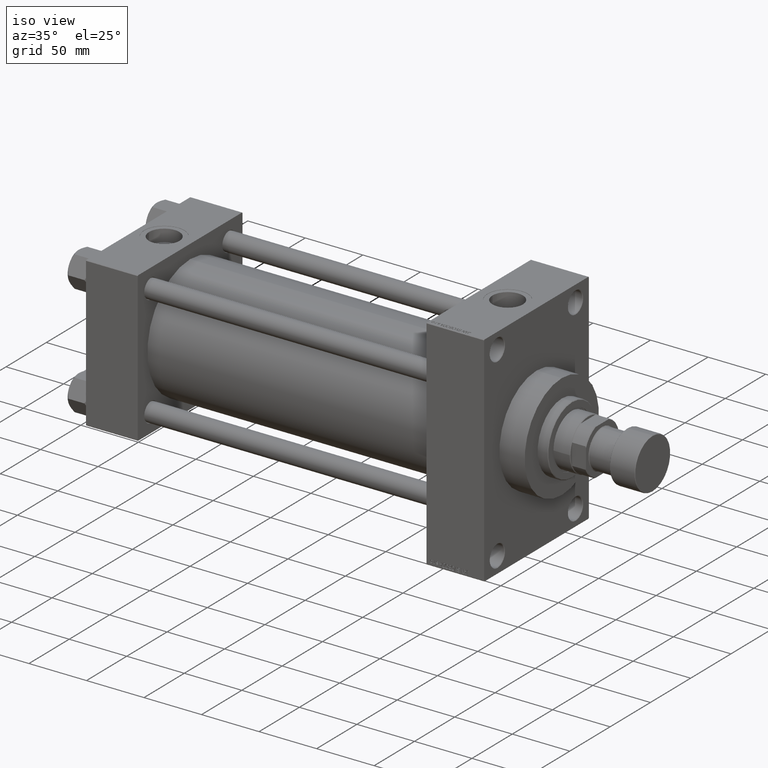
[diagram: clean part render]
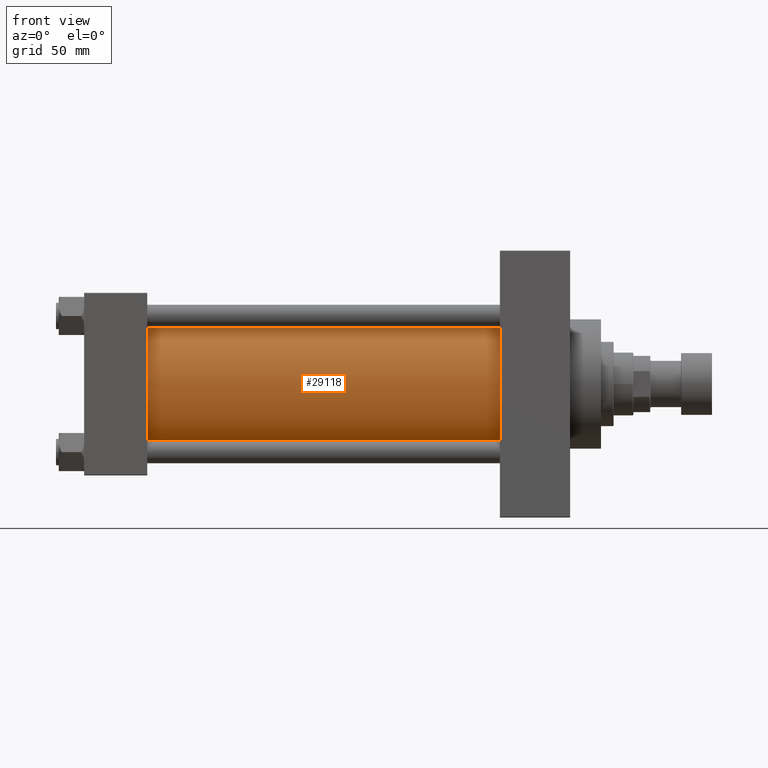
[diagram: tour spotlight — one face highlighted and labeled with its STEP entity id]
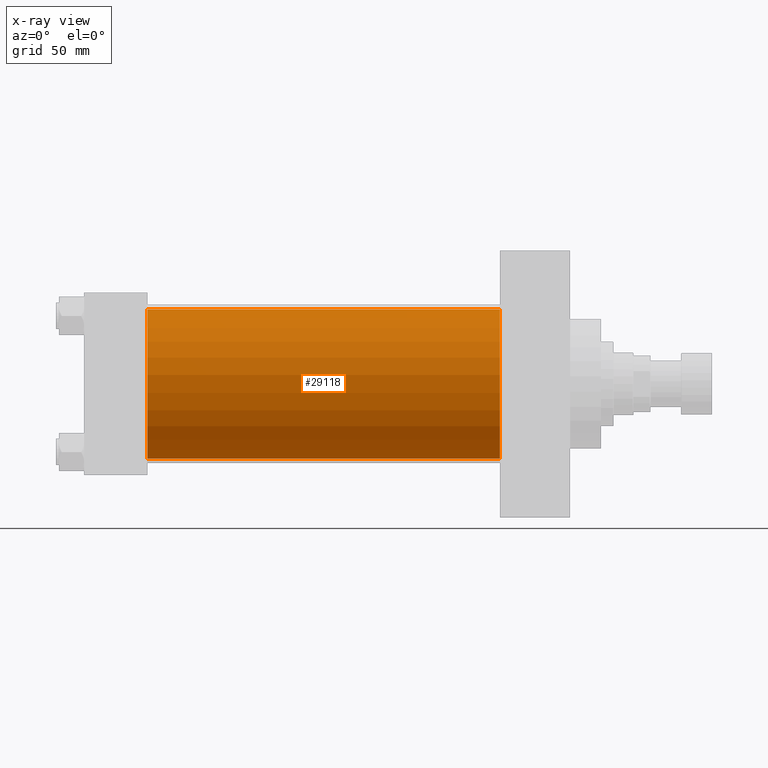
[diagram: x-ray of the same camera — body ghosted, this tour face saturated]
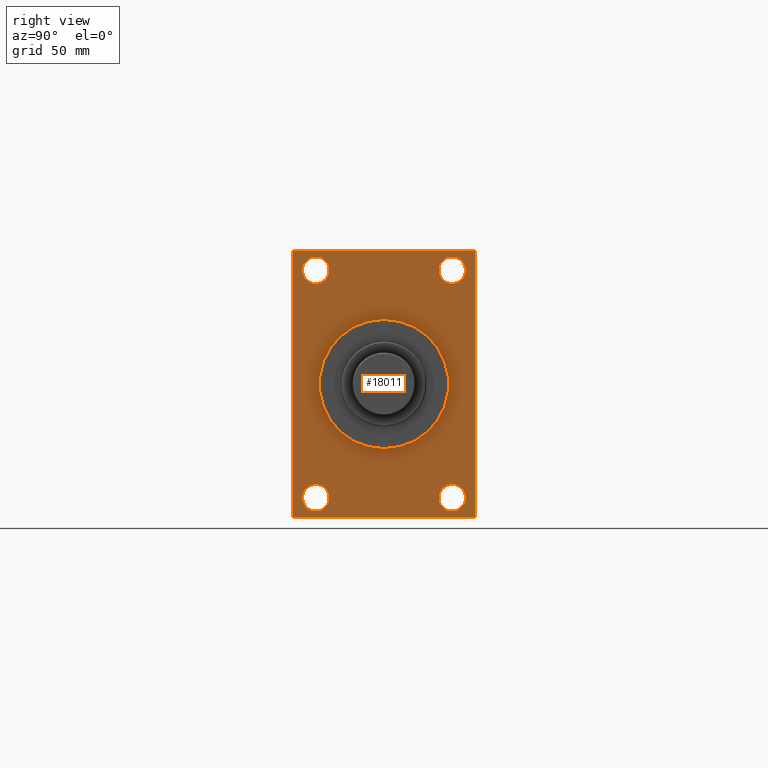
[diagram: tour spotlight — one face highlighted and labeled with its STEP entity id]
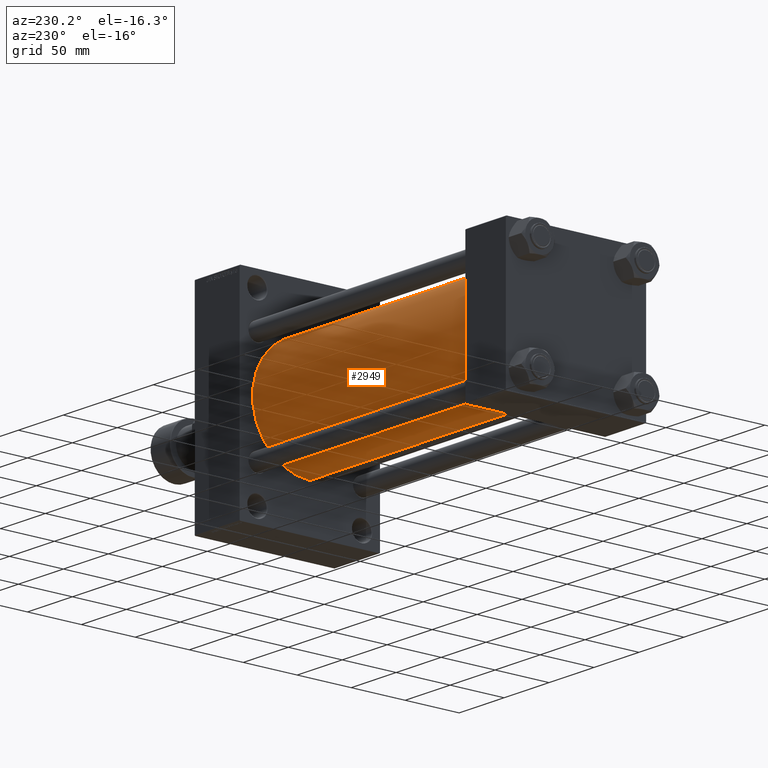
[diagram: tour spotlight — one face highlighted and labeled with its STEP entity id]
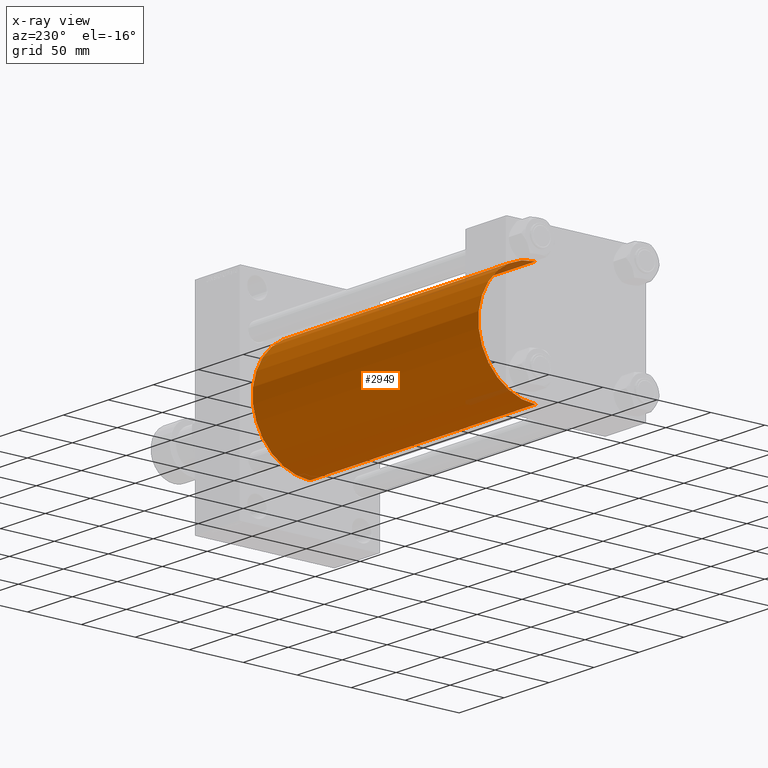
[diagram: x-ray of the same camera — body ghosted, this tour face saturated]
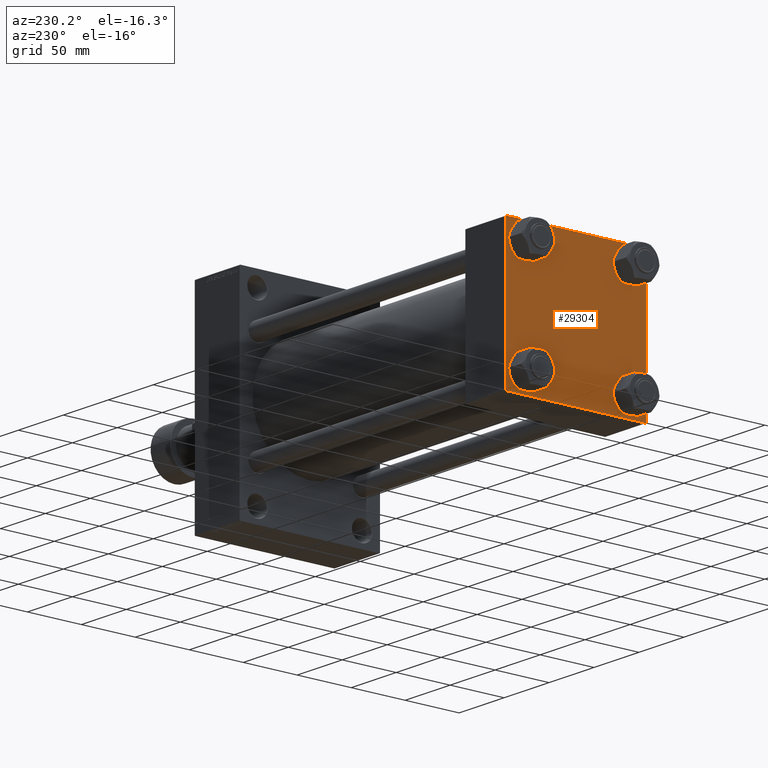
[diagram: tour spotlight — one face highlighted and labeled with its STEP entity id]
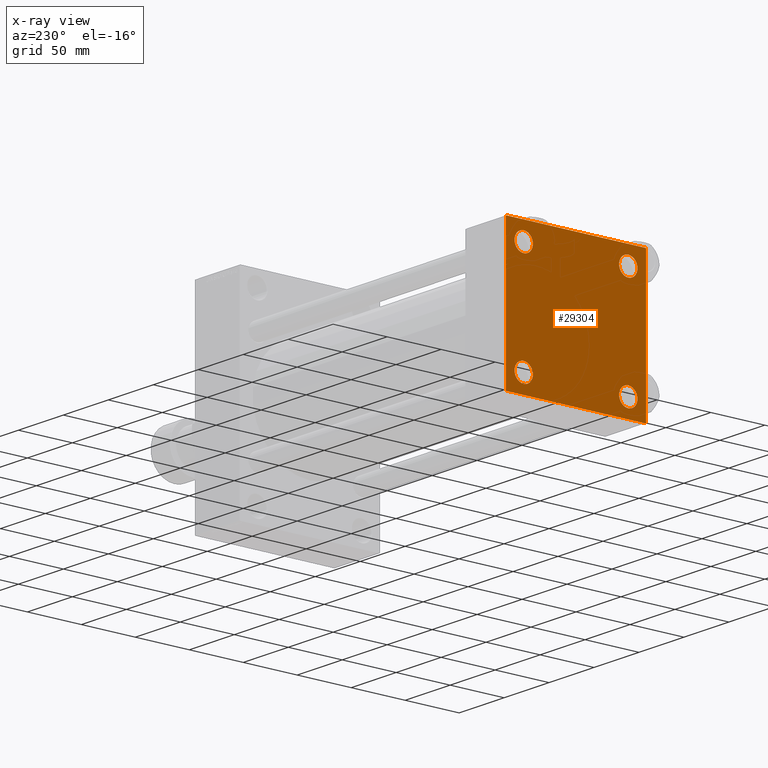
[diagram: x-ray of the same camera — body ghosted, this tour face saturated]
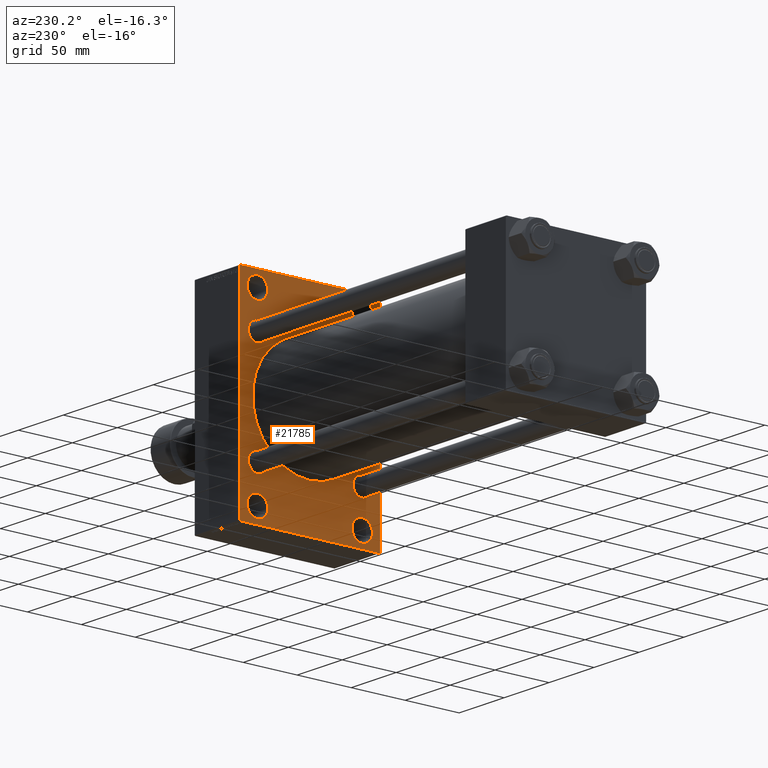
[diagram: tour spotlight — one face highlighted and labeled with its STEP entity id]
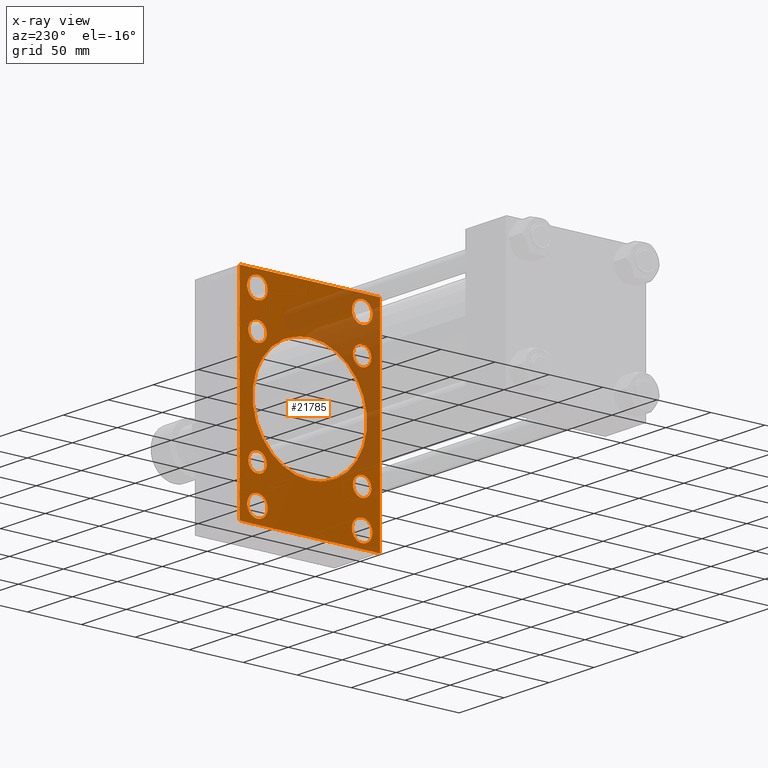
[diagram: x-ray of the same camera — body ghosted, this tour face saturated]
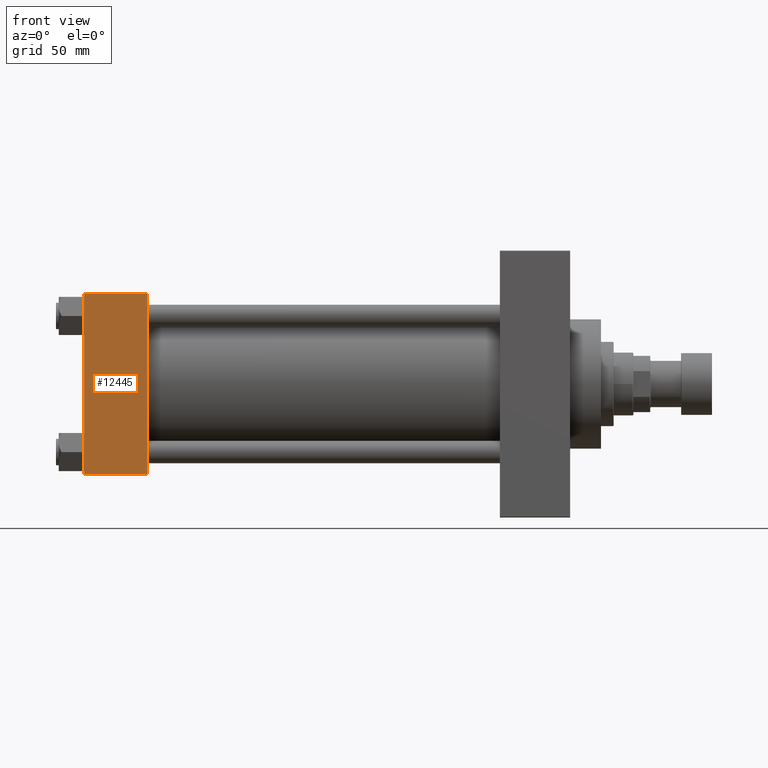
[diagram: tour spotlight — one face highlighted and labeled with its STEP entity id]
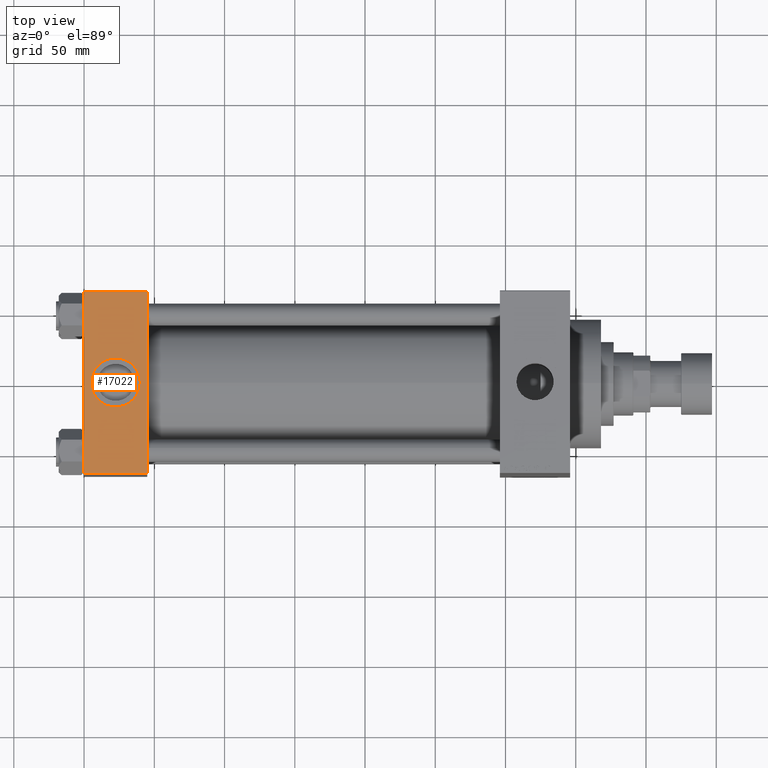
[diagram: tour spotlight — one face highlighted and labeled with its STEP entity id]
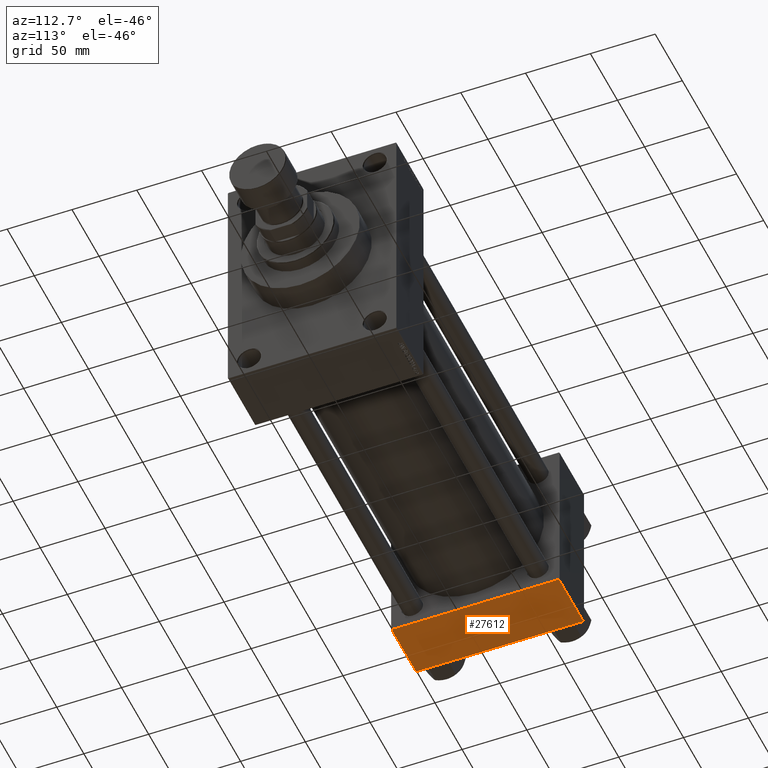
[diagram: tour spotlight — one face highlighted and labeled with its STEP entity id]
A machine part: a face-by-face anatomy tour. The part has 1164 B-rep faces; the first image is the clean iso view, then the 8 largest visible faces are spotlighted one at a time (largest first), each with its STEP entity span.

Face 1 — front view, entity #29118. An x-ray twin of the same camera follows (body ghosted, this face saturated) — the face is partly hidden behind the body. In plain terms, the highlighted cylindrical surface (partial cylindrical patch) has radius 53 mm, axis along (-1, -0, -0).
Definition (entity closure, byte-faithful):
#933 = CARTESIAN_POINT ( 'NONE',  ( 296.0000000000000000, -2.602085213965210642E-15, 53.00000000000000711 ) ) ;
#1617 = VERTEX_POINT ( 'NONE', #7462 ) ;
#2297 = AXIS2_PLACEMENT_3D ( 'NONE', #36524, #5857, #2708 ) ;
#2708 = DIRECTION ( 'NONE',  ( 0.000000000000000000, 0.000000000000000000, 1.000000000000000000 ) ) ;
#5726 = CARTESIAN_POINT ( 'NONE',  ( 296.0000000000000000, 3.888542821515762466E-15, -53.00000000000000711 ) ) ;
#5857 = DIRECTION ( 'NONE',  ( -1.000000000000000000, -0.000000000000000000, -0.000000000000000000 ) ) ;
#7462 = CARTESIAN_POINT ( 'NONE',  ( 44.99999999999998579, -2.602085213965210642E-15, 53.00000000000000711 ) ) ;
#9521 = VECTOR ( 'NONE', #22592, 1000.000000000000000 ) ;
#10020 = LINE ( 'NONE', #13178, #30680 ) ;
#11564 = VERTEX_POINT ( 'NONE', #33579 ) ;
#12416 = EDGE_CURVE ( 'NONE', #1617, #11564, #38276, .T. ) ;
#13178 = CARTESIAN_POINT ( 'NONE',  ( 296.0000000000000000, -2.602085213965210642E-15, 53.00000000000000711 ) ) ;
#13428 = AXIS2_PLACEMENT_3D ( 'NONE', #40581, #25475, #18661 ) ;
#15770 = CARTESIAN_POINT ( 'NONE',  ( 296.0000000000000000, 3.888542821515762466E-15, -53.00000000000000711 ) ) ;
#17045 = FACE_OUTER_BOUND ( 'NONE', #25220, .T. ) ;
#18661 = DIRECTION ( 'NONE',  ( 0.000000000000000000, 0.000000000000000000, -1.000000000000000000 ) ) ;
#20693 = CYLINDRICAL_SURFACE ( 'NONE', #2297, 53.00000000000000711 ) ;
#22288 = ORIENTED_EDGE ( 'NONE', *, *, #12416, .T. ) ;
#22592 = DIRECTION ( 'NONE',  ( -1.000000000000000000, -0.000000000000000000, -0.000000000000000000 ) ) ;
#24854 = DIRECTION ( 'NONE',  ( -1.000000000000000000, -0.000000000000000000, -0.000000000000000000 ) ) ;
#24991 = ORIENTED_EDGE ( 'NONE', *, *, #40020, .F. ) ;
#25220 = EDGE_LOOP ( 'NONE', ( #31542, #24991, #46618, #22288 ) ) ;
#25475 = DIRECTION ( 'NONE',  ( 1.000000000000000000, 0.000000000000000000, 0.000000000000000000 ) ) ;
#27933 = DIRECTION ( 'NONE',  ( 0.000000000000000000, 0.000000000000000000, 1.000000000000000000 ) ) ;
#29118 = ADVANCED_FACE ( 'NONE', ( #17045 ), #20693, .T. ) ;
#30680 = VECTOR ( 'NONE', #24854, 1000.000000000000000 ) ;
#31542 = ORIENTED_EDGE ( 'NONE', *, *, #38936, .F. ) ;
#33579 = CARTESIAN_POINT ( 'NONE',  ( 44.99999999999998579, 3.888542821515762466E-15, -53.00000000000000711 ) ) ;
#35244 = DIRECTION ( 'NONE',  ( 1.000000000000000000, -0.000000000000000000, 0.000000000000000000 ) ) ;
#36524 = CARTESIAN_POINT ( 'NONE',  ( 296.0000000000000000, -2.602085213965210642E-15, 0.000000000000000000 ) ) ;
#37450 = LINE ( 'NONE', #15770, #9521 ) ;
#38276 = CIRCLE ( 'NONE', #44513, 53.00000000000000711 ) ;
#38932 = VERTEX_POINT ( 'NONE', #933 ) ;
#38936 = EDGE_CURVE ( 'NONE', #41041, #11564, #37450, .T. ) ;
#40020 = EDGE_CURVE ( 'NONE', #38932, #41041, #45316, .T. ) ;
#40581 = CARTESIAN_POINT ( 'NONE',  ( 296.0000000000000000, -2.602085213965210642E-15, 0.000000000000000000 ) ) ;
#41041 = VERTEX_POINT ( 'NONE', #5726 ) ;
#41900 = CARTESIAN_POINT ( 'NONE',  ( 44.99999999999998579, -2.602085213965210642E-15, 0.000000000000000000 ) ) ;
#43710 = EDGE_CURVE ( 'NONE', #38932, #1617, #10020, .T. ) ;
#44513 = AXIS2_PLACEMENT_3D ( 'NONE', #41900, #35244, #27933 ) ;
#45316 = CIRCLE ( 'NONE', #13428, 53.00000000000000711 ) ;
#46618 = ORIENTED_EDGE ( 'NONE', *, *, #43710, .T. ) ;

Face 2 — right view, entity #18011. In plain terms, the highlighted planar face has unit normal (-1, 0, 0).
Definition (entity closure, byte-faithful):
#245 = CARTESIAN_POINT ( 'NONE',  ( 346.0000000000000000, 0.000000000000000000, 0.000000000000000000 ) ) ;
#439 = FACE_OUTER_BOUND ( 'NONE', #30641, .T. ) ;
#491 = DIRECTION ( 'NONE',  ( -1.000000000000000000, 0.000000000000000000, -0.000000000000000000 ) ) ;
#563 = AXIS2_PLACEMENT_3D ( 'NONE', #16961, #6264, #38867 ) ;
#1221 = LINE ( 'NONE', #16058, #46277 ) ;
#1518 = AXIS2_PLACEMENT_3D ( 'NONE', #26978, #27456, #41837 ) ;
#1891 = AXIS2_PLACEMENT_3D ( 'NONE', #3329, #3809, #18406 ) ;
#1955 = EDGE_CURVE ( 'NONE', #12358, #27056, #4081, .T. ) ;
#2309 = LINE ( 'NONE', #10328, #7376 ) ;
#2531 = CIRCLE ( 'NONE', #14967, 9.500000000000008882 ) ;
#2700 = ORIENTED_EDGE ( 'NONE', *, *, #42469, .T. ) ;
#3070 = VERTEX_POINT ( 'NONE', #34994 ) ;
#3329 = CARTESIAN_POINT ( 'NONE',  ( 346.0000000000000000, -48.50000000000000000, 81.00000000000000000 ) ) ;
#3654 = CARTESIAN_POINT ( 'NONE',  ( 346.0000000000000000, 48.50000000000000711, -90.50000000000002842 ) ) ;
#3659 = ORIENTED_EDGE ( 'NONE', *, *, #25519, .T. ) ;
#3809 = DIRECTION ( 'NONE',  ( -1.000000000000000000, 0.000000000000000000, -0.000000000000000000 ) ) ;
#4081 = CIRCLE ( 'NONE', #36405, 9.500000000000008882 ) ;
#4655 = AXIS2_PLACEMENT_3D ( 'NONE', #47399, #21615, #12907 ) ;
#4787 = AXIS2_PLACEMENT_3D ( 'NONE', #40316, #6975, #36662 ) ;
#4822 = CIRCLE ( 'NONE', #4787, 9.500000000000008882 ) ;
#4912 = EDGE_CURVE ( 'NONE', #37198, #11096, #19373, .T. ) ;
#4924 = AXIS2_PLACEMENT_3D ( 'NONE', #11617, #30333, #34233 ) ;
#5489 = CARTESIAN_POINT ( 'NONE',  ( 346.0000000000000000, -65.00000000000001421, -94.50000000000002842 ) ) ;
#5848 = EDGE_CURVE ( 'NONE', #11096, #37198, #12422, .T. ) ;
#5956 = VERTEX_POINT ( 'NONE', #41078 ) ;
#6003 = CARTESIAN_POINT ( 'NONE',  ( 346.0000000000000000, -65.00000000000001421, 94.99999999999997158 ) ) ;
#6264 = DIRECTION ( 'NONE',  ( -1.000000000000000000, 0.000000000000000000, -0.000000000000000000 ) ) ;
#6852 = EDGE_CURVE ( 'NONE', #27056, #12358, #10102, .T. ) ;
#6856 = ORIENTED_EDGE ( 'NONE', *, *, #38279, .T. ) ;
#6975 = DIRECTION ( 'NONE',  ( -1.000000000000000000, 0.000000000000000000, -0.000000000000000000 ) ) ;
#7088 = CARTESIAN_POINT ( 'NONE',  ( 346.0000000000000000, -48.49999999999999289, -71.50000000000001421 ) ) ;
#7376 = VECTOR ( 'NONE', #31736, 1000.000000000000000 ) ;
#8193 = FACE_BOUND ( 'NONE', #30287, .T. ) ;
#9000 = CARTESIAN_POINT ( 'NONE',  ( 346.0000000000000000, -64.50000000000001421, -95.00000000000002842 ) ) ;
#10102 = CIRCLE ( 'NONE', #42746, 9.500000000000008882 ) ;
#10328 = CARTESIAN_POINT ( 'NONE',  ( 346.0000000000000000, 64.99999999999998579, -95.00000000000001421 ) ) ;
#10568 = LINE ( 'NONE', #25647, #22297 ) ;
#10705 = ORIENTED_EDGE ( 'NONE', *, *, #30182, .T. ) ;
#10910 = CIRCLE ( 'NONE', #12447, 9.500000000000008882 ) ;
#10987 = ORIENTED_EDGE ( 'NONE', *, *, #5848, .F. ) ;
#11062 = DIRECTION ( 'NONE',  ( 0.000000000000000000, 0.000000000000000000, 1.000000000000000000 ) ) ;
#11096 = VERTEX_POINT ( 'NONE', #21969 ) ;
#11210 = EDGE_LOOP ( 'NONE', ( #6856, #18213 ) ) ;
#11321 = VECTOR ( 'NONE', #17181, 1000.000000000000000 ) ;
#11617 = CARTESIAN_POINT ( 'NONE',  ( 346.0000000000000000, 0.000000000000000000, 0.000000000000000000 ) ) ;
#11809 = VERTEX_POINT ( 'NONE', #22560 ) ;
#11921 = VERTEX_POINT ( 'NONE', #5489 ) ;
#12324 = PLANE ( 'NONE',  #4924 ) ;
#12358 = VERTEX_POINT ( 'NONE', #33188 ) ;
#12422 = CIRCLE ( 'NONE', #4655, 46.00000000000000000 ) ;
#12447 = AXIS2_PLACEMENT_3D ( 'NONE', #22380, #491, #18015 ) ;
#12907 = DIRECTION ( 'NONE',  ( 0.000000000000000000, 0.000000000000000000, -1.000000000000000000 ) ) ;
#13539 = CARTESIAN_POINT ( 'NONE',  ( 346.0000000000000000, 64.99999999999997158, 94.99999999999997158 ) ) ;
#14270 = ORIENTED_EDGE ( 'NONE', *, *, #4912, .F. ) ;
#14468 = DIRECTION ( 'NONE',  ( -1.000000000000000000, 0.000000000000000000, -0.000000000000000000 ) ) ;
#14967 = AXIS2_PLACEMENT_3D ( 'NONE', #33220, #14468, #11062 ) ;
#15081 = DIRECTION ( 'NONE',  ( 1.000000000000000000, 0.000000000000000000, 0.000000000000000000 ) ) ;
#15583 = ORIENTED_EDGE ( 'NONE', *, *, #6852, .T. ) ;
#16058 = CARTESIAN_POINT ( 'NONE',  ( 346.0000000000000000, 64.99999999999997158, 94.99999999999997158 ) ) ;
#16117 = VERTEX_POINT ( 'NONE', #18019 ) ;
#16207 = FACE_BOUND ( 'NONE', #24839, .T. ) ;
#16700 = LINE ( 'NONE', #6003, #37449 ) ;
#16954 = ORIENTED_EDGE ( 'NONE', *, *, #29268, .T. ) ;
#16961 = CARTESIAN_POINT ( 'NONE',  ( 346.0000000000000000, 48.50000000000000711, 81.00000000000000000 ) ) ;
#17181 = DIRECTION ( 'NONE',  ( 0.000000000000000000, -1.000000000000000000, 0.000000000000000000 ) ) ;
#17827 = AXIS2_PLACEMENT_3D ( 'NONE', #245, #15081, #26264 ) ;
#18011 = ADVANCED_FACE ( 'NONE', ( #41787, #41549, #8193, #19153, #16207, #439 ), #12324, .F. ) ;
#18015 = DIRECTION ( 'NONE',  ( 0.000000000000000000, 0.000000000000000000, 1.000000000000000000 ) ) ;
#18019 = CARTESIAN_POINT ( 'NONE',  ( 346.0000000000000000, 64.99999999999998579, -94.49999999999997158 ) ) ;
#18035 = ORIENTED_EDGE ( 'NONE', *, *, #20639, .F. ) ;
#18213 = ORIENTED_EDGE ( 'NONE', *, *, #25877, .T. ) ;
#18406 = DIRECTION ( 'NONE',  ( 0.000000000000000000, 0.000000000000000000, 1.000000000000000000 ) ) ;
#19144 = CARTESIAN_POINT ( 'NONE',  ( 346.0000000000000000, 48.50000000000000711, 71.50000000000000000 ) ) ;
#19153 = FACE_BOUND ( 'NONE', #11210, .T. ) ;
#19373 = CIRCLE ( 'NONE', #17827, 46.00000000000000000 ) ;
#20639 = EDGE_CURVE ( 'NONE', #31661, #26813, #2309, .T. ) ;
#20787 = CARTESIAN_POINT ( 'NONE',  ( 346.0000000000000000, -64.50000000000001421, -95.00000000000002842 ) ) ;
#21330 = VERTEX_POINT ( 'NONE', #40577 ) ;
#21615 = DIRECTION ( 'NONE',  ( 1.000000000000000000, 0.000000000000000000, 0.000000000000000000 ) ) ;
#21969 = CARTESIAN_POINT ( 'NONE',  ( 346.0000000000000000, 0.000000000000000000, 46.00000000000000000 ) ) ;
#22297 = VECTOR ( 'NONE', #40512, 1000.000000000000114 ) ;
#22340 = CARTESIAN_POINT ( 'NONE',  ( 346.0000000000000000, 64.49999999999987210, -95.00000000000001421 ) ) ;
#22380 = CARTESIAN_POINT ( 'NONE',  ( 346.0000000000000000, -48.50000000000000000, 81.00000000000000000 ) ) ;
#22560 = CARTESIAN_POINT ( 'NONE',  ( 346.0000000000000000, 64.49999999999997158, 94.99999999999997158 ) ) ;
#23037 = EDGE_CURVE ( 'NONE', #43896, #16117, #1221, .T. ) ;
#23056 = ORIENTED_EDGE ( 'NONE', *, *, #46342, .T. ) ;
#23977 = LINE ( 'NONE', #13539, #11321 ) ;
#24547 = ORIENTED_EDGE ( 'NONE', *, *, #33239, .T. ) ;
#24568 = DIRECTION ( 'NONE',  ( -1.000000000000000000, 0.000000000000000000, -0.000000000000000000 ) ) ;
#24827 = VERTEX_POINT ( 'NONE', #41859 ) ;
#24839 = EDGE_LOOP ( 'NONE', ( #10987, #14270 ) ) ;
#25519 = EDGE_CURVE ( 'NONE', #31661, #16117, #10568, .T. ) ;
#25647 = CARTESIAN_POINT ( 'NONE',  ( 346.0000000000000000, 64.99999999999998579, -94.49999999999997158 ) ) ;
#25877 = EDGE_CURVE ( 'NONE', #24827, #28306, #45590, .T. ) ;
#25974 = CARTESIAN_POINT ( 'NONE',  ( 346.0000000000000000, 48.50000000000000711, -81.00000000000001421 ) ) ;
#26264 = DIRECTION ( 'NONE',  ( 0.000000000000000000, 0.000000000000000000, -1.000000000000000000 ) ) ;
#26430 = EDGE_LOOP ( 'NONE', ( #16954, #34077 ) ) ;
#26750 = LINE ( 'NONE', #37950, #29597 ) ;
#26813 = VERTEX_POINT ( 'NONE', #9000 ) ;
#26978 = CARTESIAN_POINT ( 'NONE',  ( 346.0000000000000000, -48.49999999999999289, -81.00000000000001421 ) ) ;
#27056 = VERTEX_POINT ( 'NONE', #3654 ) ;
#27456 = DIRECTION ( 'NONE',  ( -1.000000000000000000, 0.000000000000000000, -0.000000000000000000 ) ) ;
#27459 = CARTESIAN_POINT ( 'NONE',  ( 346.0000000000000000, 48.50000000000000711, -81.00000000000001421 ) ) ;
#27854 = CARTESIAN_POINT ( 'NONE',  ( 346.0000000000000000, -64.50000000000002842, 94.99999999999997158 ) ) ;
#28291 = VECTOR ( 'NONE', #47960, 1000.000000000000114 ) ;
#28306 = VERTEX_POINT ( 'NONE', #19144 ) ;
#29268 = EDGE_CURVE ( 'NONE', #21330, #32159, #41930, .T. ) ;
#29597 = VECTOR ( 'NONE', #31107, 1000.000000000000000 ) ;
#29995 = ORIENTED_EDGE ( 'NONE', *, *, #43425, .T. ) ;
#30182 = EDGE_CURVE ( 'NONE', #42537, #3070, #10910, .T. ) ;
#30287 = EDGE_LOOP ( 'NONE', ( #15583, #37244 ) ) ;
#30333 = DIRECTION ( 'NONE',  ( -1.000000000000000000, 0.000000000000000000, -0.000000000000000000 ) ) ;
#30641 = EDGE_LOOP ( 'NONE', ( #24547, #29995, #18035, #3659, #39825, #2700, #23056, #41898 ) ) ;
#30897 = DIRECTION ( 'NONE',  ( 0.000000000000000000, 7.304098846218135653E-17, -1.000000000000000000 ) ) ;
#31107 = DIRECTION ( 'NONE',  ( -0.000000000000000000, -0.7071067811865378028, -0.7071067811865573427 ) ) ;
#31327 = EDGE_CURVE ( 'NONE', #40204, #5956, #26750, .T. ) ;
#31585 = DIRECTION ( 'NONE',  ( 0.000000000000000000, 0.000000000000000000, 1.000000000000000000 ) ) ;
#31661 = VERTEX_POINT ( 'NONE', #22340 ) ;
#31736 = DIRECTION ( 'NONE',  ( 0.000000000000000000, -1.000000000000000000, -1.067522139062650425E-16 ) ) ;
#32159 = VERTEX_POINT ( 'NONE', #7088 ) ;
#32896 = ORIENTED_EDGE ( 'NONE', *, *, #43126, .T. ) ;
#33188 = CARTESIAN_POINT ( 'NONE',  ( 346.0000000000000000, 48.50000000000000711, -71.50000000000001421 ) ) ;
#33220 = CARTESIAN_POINT ( 'NONE',  ( 346.0000000000000000, 48.50000000000000711, 81.00000000000000000 ) ) ;
#33239 = EDGE_CURVE ( 'NONE', #5956, #11921, #16700, .T. ) ;
#33340 = EDGE_CURVE ( 'NONE', #32159, #21330, #4822, .T. ) ;
#34077 = ORIENTED_EDGE ( 'NONE', *, *, #33340, .T. ) ;
#34233 = DIRECTION ( 'NONE',  ( -0.000000000000000000, 0.000000000000000000, 1.000000000000000000 ) ) ;
#34540 = VECTOR ( 'NONE', #35627, 1000.000000000000114 ) ;
#34994 = CARTESIAN_POINT ( 'NONE',  ( 346.0000000000000000, -48.50000000000000000, 71.50000000000000000 ) ) ;
#35298 = CIRCLE ( 'NONE', #1891, 9.500000000000008882 ) ;
#35625 = CARTESIAN_POINT ( 'NONE',  ( 346.0000000000000000, 5.633375276077824704E-15, -46.00000000000000000 ) ) ;
#35627 = DIRECTION ( 'NONE',  ( 0.000000000000000000, 0.7071067811865474617, -0.7071067811865474617 ) ) ;
#36405 = AXIS2_PLACEMENT_3D ( 'NONE', #25974, #24568, #42004 ) ;
#36662 = DIRECTION ( 'NONE',  ( 0.000000000000000000, 0.000000000000000000, 1.000000000000000000 ) ) ;
#37198 = VERTEX_POINT ( 'NONE', #35625 ) ;
#37244 = ORIENTED_EDGE ( 'NONE', *, *, #1955, .T. ) ;
#37449 = VECTOR ( 'NONE', #46386, 1000.000000000000000 ) ;
#37950 = CARTESIAN_POINT ( 'NONE',  ( 346.0000000000000000, -65.00000000000001421, 94.49999999999997158 ) ) ;
#38279 = EDGE_CURVE ( 'NONE', #28306, #24827, #2531, .T. ) ;
#38867 = DIRECTION ( 'NONE',  ( 0.000000000000000000, 0.000000000000000000, 1.000000000000000000 ) ) ;
#39031 = CARTESIAN_POINT ( 'NONE',  ( 346.0000000000000000, 64.49999999999997158, 94.99999999999997158 ) ) ;
#39784 = LINE ( 'NONE', #20787, #34540 ) ;
#39825 = ORIENTED_EDGE ( 'NONE', *, *, #23037, .F. ) ;
#40146 = EDGE_LOOP ( 'NONE', ( #32896, #10705 ) ) ;
#40204 = VERTEX_POINT ( 'NONE', #27854 ) ;
#40316 = CARTESIAN_POINT ( 'NONE',  ( 346.0000000000000000, -48.49999999999999289, -81.00000000000001421 ) ) ;
#40512 = DIRECTION ( 'NONE',  ( -0.000000000000000000, 0.7071067811865965336, 0.7071067811864985009 ) ) ;
#40577 = CARTESIAN_POINT ( 'NONE',  ( 346.0000000000000000, -48.49999999999999289, -90.50000000000002842 ) ) ;
#40699 = CARTESIAN_POINT ( 'NONE',  ( 346.0000000000000000, 64.99999999999997158, 94.49999999999997158 ) ) ;
#41078 = CARTESIAN_POINT ( 'NONE',  ( 346.0000000000000000, -65.00000000000001421, 94.49999999999997158 ) ) ;
#41549 = FACE_BOUND ( 'NONE', #26430, .T. ) ;
#41787 = FACE_BOUND ( 'NONE', #40146, .T. ) ;
#41837 = DIRECTION ( 'NONE',  ( 0.000000000000000000, 0.000000000000000000, 1.000000000000000000 ) ) ;
#41859 = CARTESIAN_POINT ( 'NONE',  ( 346.0000000000000000, 48.50000000000000711, 90.50000000000001421 ) ) ;
#41898 = ORIENTED_EDGE ( 'NONE', *, *, #31327, .T. ) ;
#41930 = CIRCLE ( 'NONE', #1518, 9.500000000000008882 ) ;
#42004 = DIRECTION ( 'NONE',  ( 0.000000000000000000, 0.000000000000000000, 1.000000000000000000 ) ) ;
#42469 = EDGE_CURVE ( 'NONE', #43896, #11809, #42927, .T. ) ;
#42537 = VERTEX_POINT ( 'NONE', #44797 ) ;
#42746 = AXIS2_PLACEMENT_3D ( 'NONE', #27459, #46926, #31585 ) ;
#42927 = LINE ( 'NONE', #39031, #28291 ) ;
#43126 = EDGE_CURVE ( 'NONE', #3070, #42537, #35298, .T. ) ;
#43425 = EDGE_CURVE ( 'NONE', #11921, #26813, #39784, .T. ) ;
#43896 = VERTEX_POINT ( 'NONE', #40699 ) ;
#44797 = CARTESIAN_POINT ( 'NONE',  ( 346.0000000000000000, -48.50000000000000000, 90.50000000000001421 ) ) ;
#45590 = CIRCLE ( 'NONE', #563, 9.500000000000008882 ) ;
#46277 = VECTOR ( 'NONE', #30897, 1000.000000000000000 ) ;
#46342 = EDGE_CURVE ( 'NONE', #11809, #40204, #23977, .T. ) ;
#46386 = DIRECTION ( 'NONE',  ( 0.000000000000000000, 0.000000000000000000, -1.000000000000000000 ) ) ;
#46926 = DIRECTION ( 'NONE',  ( -1.000000000000000000, 0.000000000000000000, -0.000000000000000000 ) ) ;
#47399 = CARTESIAN_POINT ( 'NONE',  ( 346.0000000000000000, 0.000000000000000000, 0.000000000000000000 ) ) ;
#47960 = DIRECTION ( 'NONE',  ( 0.000000000000000000, -0.7071067811865474617, 0.7071067811865474617 ) ) ;

Face 3 — auxiliary view, entity #2949. An x-ray twin of the same camera follows (body ghosted, this face saturated) — the face is partly hidden behind the body. In plain terms, the highlighted cylindrical surface (partial cylindrical patch) has radius 53 mm, axis along (-1, -0, -0).
Definition (entity closure, byte-faithful):
#933 = CARTESIAN_POINT ( 'NONE',  ( 296.0000000000000000, -2.602085213965210642E-15, 53.00000000000000711 ) ) ;
#1617 = VERTEX_POINT ( 'NONE', #7462 ) ;
#1790 = CIRCLE ( 'NONE', #10343, 53.00000000000000711 ) ;
#2645 = DIRECTION ( 'NONE',  ( 1.000000000000000000, 0.000000000000000000, 0.000000000000000000 ) ) ;
#2949 = ADVANCED_FACE ( 'NONE', ( #21433 ), #40179, .T. ) ;
#5726 = CARTESIAN_POINT ( 'NONE',  ( 296.0000000000000000, 3.888542821515762466E-15, -53.00000000000000711 ) ) ;
#6344 = DIRECTION ( 'NONE',  ( 0.000000000000000000, 0.000000000000000000, 1.000000000000000000 ) ) ;
#7462 = CARTESIAN_POINT ( 'NONE',  ( 44.99999999999998579, -2.602085213965210642E-15, 53.00000000000000711 ) ) ;
#9521 = VECTOR ( 'NONE', #22592, 1000.000000000000000 ) ;
#10020 = LINE ( 'NONE', #13178, #30680 ) ;
#10343 = AXIS2_PLACEMENT_3D ( 'NONE', #39625, #2645, #13087 ) ;
#11564 = VERTEX_POINT ( 'NONE', #33579 ) ;
#13087 = DIRECTION ( 'NONE',  ( 0.000000000000000000, 0.000000000000000000, -1.000000000000000000 ) ) ;
#13178 = CARTESIAN_POINT ( 'NONE',  ( 296.0000000000000000, -2.602085213965210642E-15, 53.00000000000000711 ) ) ;
#13447 = CARTESIAN_POINT ( 'NONE',  ( 44.99999999999998579, -2.602085213965210642E-15, 0.000000000000000000 ) ) ;
#13546 = ORIENTED_EDGE ( 'NONE', *, *, #17043, .F. ) ;
#15770 = CARTESIAN_POINT ( 'NONE',  ( 296.0000000000000000, 3.888542821515762466E-15, -53.00000000000000711 ) ) ;
#17043 = EDGE_CURVE ( 'NONE', #41041, #38932, #1790, .T. ) ;
#18096 = AXIS2_PLACEMENT_3D ( 'NONE', #13447, #46776, #28287 ) ;
#21433 = FACE_OUTER_BOUND ( 'NONE', #31302, .T. ) ;
#22592 = DIRECTION ( 'NONE',  ( -1.000000000000000000, -0.000000000000000000, -0.000000000000000000 ) ) ;
#24854 = DIRECTION ( 'NONE',  ( -1.000000000000000000, -0.000000000000000000, -0.000000000000000000 ) ) ;
#27104 = ORIENTED_EDGE ( 'NONE', *, *, #38936, .T. ) ;
#28287 = DIRECTION ( 'NONE',  ( 0.000000000000000000, 0.000000000000000000, 1.000000000000000000 ) ) ;
#30680 = VECTOR ( 'NONE', #24854, 1000.000000000000000 ) ;
#31302 = EDGE_LOOP ( 'NONE', ( #13546, #27104, #44847, #38299 ) ) ;
#32634 = AXIS2_PLACEMENT_3D ( 'NONE', #36521, #39688, #6344 ) ;
#33579 = CARTESIAN_POINT ( 'NONE',  ( 44.99999999999998579, 3.888542821515762466E-15, -53.00000000000000711 ) ) ;
#35730 = EDGE_CURVE ( 'NONE', #11564, #1617, #39061, .T. ) ;
#36521 = CARTESIAN_POINT ( 'NONE',  ( 296.0000000000000000, -2.602085213965210642E-15, 0.000000000000000000 ) ) ;
#37450 = LINE ( 'NONE', #15770, #9521 ) ;
#38299 = ORIENTED_EDGE ( 'NONE', *, *, #43710, .F. ) ;
#38932 = VERTEX_POINT ( 'NONE', #933 ) ;
#38936 = EDGE_CURVE ( 'NONE', #41041, #11564, #37450, .T. ) ;
#39061 = CIRCLE ( 'NONE', #18096, 53.00000000000000711 ) ;
#39625 = CARTESIAN_POINT ( 'NONE',  ( 296.0000000000000000, -2.602085213965210642E-15, 0.000000000000000000 ) ) ;
#39688 = DIRECTION ( 'NONE',  ( -1.000000000000000000, -0.000000000000000000, -0.000000000000000000 ) ) ;
#40179 = CYLINDRICAL_SURFACE ( 'NONE', #32634, 53.00000000000000711 ) ;
#41041 = VERTEX_POINT ( 'NONE', #5726 ) ;
#43710 = EDGE_CURVE ( 'NONE', #38932, #1617, #10020, .T. ) ;
#44847 = ORIENTED_EDGE ( 'NONE', *, *, #35730, .T. ) ;
#46776 = DIRECTION ( 'NONE',  ( 1.000000000000000000, -0.000000000000000000, 0.000000000000000000 ) ) ;

Face 4 — auxiliary view, entity #29304. An x-ray twin of the same camera follows (body ghosted, this face saturated) — the face is partly hidden behind the body. In plain terms, the highlighted planar face has unit normal (-1, 0, 0).
Definition (entity closure, byte-faithful):
#1202 = VERTEX_POINT ( 'NONE', #46948 ) ;
#1814 = CARTESIAN_POINT ( 'NONE',  ( 0.000000000000000000, 48.45000000000000995, -48.45000000000001705 ) ) ;
#1909 = CARTESIAN_POINT ( 'NONE',  ( 0.000000000000000000, 0.000000000000000000, 0.000000000000000000 ) ) ;
#2321 = CARTESIAN_POINT ( 'NONE',  ( 0.000000000000000000, -65.00000000000000000, -64.49999999999991473 ) ) ;
#2688 = AXIS2_PLACEMENT_3D ( 'NONE', #11290, #43663, #6439 ) ;
#2743 = LINE ( 'NONE', #20476, #40016 ) ;
#2896 = DIRECTION ( 'NONE',  ( -0.000000000000000000, 0.000000000000000000, 1.000000000000000000 ) ) ;
#2917 = DIRECTION ( 'NONE',  ( 1.000000000000000000, -0.000000000000000000, 0.000000000000000000 ) ) ;
#2957 = VERTEX_POINT ( 'NONE', #36282 ) ;
#3036 = DIRECTION ( 'NONE',  ( 0.000000000000000000, 0.000000000000000000, 1.000000000000000000 ) ) ;
#3353 = CARTESIAN_POINT ( 'NONE',  ( 0.000000000000000000, 65.00000000000000000, -64.49999999999995737 ) ) ;
#3985 = EDGE_LOOP ( 'NONE', ( #27703, #19545 ) ) ;
#6045 = FACE_OUTER_BOUND ( 'NONE', #28686, .T. ) ;
#6439 = DIRECTION ( 'NONE',  ( 0.000000000000000000, 0.000000000000000000, 1.000000000000000000 ) ) ;
#6541 = FACE_BOUND ( 'NONE', #26749, .T. ) ;
#6769 = EDGE_LOOP ( 'NONE', ( #43367, #22202 ) ) ;
#7340 = CIRCLE ( 'NONE', #45390, 8.500000000000007105 ) ;
#7995 = CARTESIAN_POINT ( 'NONE',  ( 0.000000000000000000, -48.44999999999999574, 39.95000000000001705 ) ) ;
#8481 = EDGE_CURVE ( 'NONE', #23878, #13247, #9354, .T. ) ;
#8714 = VERTEX_POINT ( 'NONE', #3353 ) ;
#8781 = LINE ( 'NONE', #26804, #45360 ) ;
#8945 = VERTEX_POINT ( 'NONE', #13517 ) ;
#9087 = CARTESIAN_POINT ( 'NONE',  ( 0.000000000000000000, 48.45000000000000995, 39.95000000000000284 ) ) ;
#9142 = AXIS2_PLACEMENT_3D ( 'NONE', #26094, #44356, #44834 ) ;
#9352 = CARTESIAN_POINT ( 'NONE',  ( 0.000000000000000000, -48.44999999999999574, 56.95000000000003837 ) ) ;
#9354 = CIRCLE ( 'NONE', #15593, 8.500000000000007105 ) ;
#9486 = CIRCLE ( 'NONE', #11046, 8.500000000000007105 ) ;
#9592 = AXIS2_PLACEMENT_3D ( 'NONE', #32006, #39319, #46851 ) ;
#9733 = CIRCLE ( 'NONE', #43169, 8.500000000000007105 ) ;
#10419 = DIRECTION ( 'NONE',  ( -1.000000000000000000, 0.000000000000000000, -0.000000000000000000 ) ) ;
#11046 = AXIS2_PLACEMENT_3D ( 'NONE', #33273, #14760, #29848 ) ;
#11290 = CARTESIAN_POINT ( 'NONE',  ( 0.000000000000000000, -48.44999999999999574, -48.45000000000003126 ) ) ;
#11686 = CARTESIAN_POINT ( 'NONE',  ( 0.000000000000000000, -48.44999999999999574, -39.95000000000001705 ) ) ;
#11714 = DIRECTION ( 'NONE',  ( 0.000000000000000000, 0.000000000000000000, 1.000000000000000000 ) ) ;
#12958 = LINE ( 'NONE', #42642, #23553 ) ;
#12997 = CARTESIAN_POINT ( 'NONE',  ( 0.000000000000000000, 65.00000000000000000, 64.49999999999998579 ) ) ;
#13247 = VERTEX_POINT ( 'NONE', #9352 ) ;
#13361 = CARTESIAN_POINT ( 'NONE',  ( 0.000000000000000000, 48.45000000000000995, 48.45000000000001705 ) ) ;
#13517 = CARTESIAN_POINT ( 'NONE',  ( 0.000000000000000000, -64.49999999999997158, 65.00000000000000000 ) ) ;
#13838 = CARTESIAN_POINT ( 'NONE',  ( 0.000000000000000000, -64.49999999999994316, -65.00000000000000000 ) ) ;
#14344 = VECTOR ( 'NONE', #29067, 1000.000000000000000 ) ;
#14760 = DIRECTION ( 'NONE',  ( 1.000000000000000000, -0.000000000000000000, 0.000000000000000000 ) ) ;
#15593 = AXIS2_PLACEMENT_3D ( 'NONE', #30201, #45047, #11714 ) ;
#15993 = EDGE_CURVE ( 'NONE', #44749, #8945, #8781, .T. ) ;
#16451 = ORIENTED_EDGE ( 'NONE', *, *, #37467, .T. ) ;
#16658 = EDGE_CURVE ( 'NONE', #36168, #27644, #23846, .T. ) ;
#16676 = AXIS2_PLACEMENT_3D ( 'NONE', #25083, #21693, #44083 ) ;
#16891 = LINE ( 'NONE', #21281, #14344 ) ;
#17793 = VERTEX_POINT ( 'NONE', #13838 ) ;
#17882 = DIRECTION ( 'NONE',  ( -0.000000000000000000, 0.7071067811865672237, 0.7071067811865279218 ) ) ;
#17933 = CARTESIAN_POINT ( 'NONE',  ( 0.000000000000000000, 48.45000000000000995, 56.95000000000002416 ) ) ;
#18102 = ORIENTED_EDGE ( 'NONE', *, *, #43660, .T. ) ;
#18206 = VECTOR ( 'NONE', #45529, 1000.000000000000000 ) ;
#19181 = EDGE_CURVE ( 'NONE', #26059, #46682, #7340, .T. ) ;
#19325 = EDGE_CURVE ( 'NONE', #44472, #2957, #22096, .T. ) ;
#19545 = ORIENTED_EDGE ( 'NONE', *, *, #27998, .T. ) ;
#19806 = CIRCLE ( 'NONE', #16676, 8.500000000000007105 ) ;
#19821 = EDGE_LOOP ( 'NONE', ( #42850, #33000 ) ) ;
#20476 = CARTESIAN_POINT ( 'NONE',  ( 0.000000000000000000, 64.74999999999998579, 64.74999999999998579 ) ) ;
#21197 = ORIENTED_EDGE ( 'NONE', *, *, #16658, .F. ) ;
#21281 = CARTESIAN_POINT ( 'NONE',  ( 0.000000000000000000, 65.00000000000000000, 65.00000000000001421 ) ) ;
#21616 = EDGE_CURVE ( 'NONE', #36168, #8945, #39551, .T. ) ;
#21693 = DIRECTION ( 'NONE',  ( 1.000000000000000000, -0.000000000000000000, 0.000000000000000000 ) ) ;
#22096 = CIRCLE ( 'NONE', #2688, 8.500000000000007105 ) ;
#22202 = ORIENTED_EDGE ( 'NONE', *, *, #37984, .T. ) ;
#23132 = ORIENTED_EDGE ( 'NONE', *, *, #43396, .T. ) ;
#23553 = VECTOR ( 'NONE', #46531, 1000.000000000000000 ) ;
#23826 = ORIENTED_EDGE ( 'NONE', *, *, #40408, .T. ) ;
#23846 = LINE ( 'NONE', #30683, #18206 ) ;
#23878 = VERTEX_POINT ( 'NONE', #7995 ) ;
#24670 = CIRCLE ( 'NONE', #9142, 8.500000000000007105 ) ;
#25083 = CARTESIAN_POINT ( 'NONE',  ( 0.000000000000000000, -48.44999999999999574, -48.45000000000003126 ) ) ;
#26049 = VECTOR ( 'NONE', #17882, 1000.000000000000000 ) ;
#26059 = VERTEX_POINT ( 'NONE', #17933 ) ;
#26094 = CARTESIAN_POINT ( 'NONE',  ( 0.000000000000000000, 48.45000000000000995, 48.45000000000001705 ) ) ;
#26749 = EDGE_LOOP ( 'NONE', ( #35432, #35618 ) ) ;
#26804 = CARTESIAN_POINT ( 'NONE',  ( 0.000000000000000000, 65.00000000000000000, 65.00000000000001421 ) ) ;
#27644 = VERTEX_POINT ( 'NONE', #2321 ) ;
#27703 = ORIENTED_EDGE ( 'NONE', *, *, #19181, .T. ) ;
#27998 = EDGE_CURVE ( 'NONE', #46682, #26059, #24670, .T. ) ;
#28168 = VERTEX_POINT ( 'NONE', #32809 ) ;
#28686 = EDGE_LOOP ( 'NONE', ( #23132, #16451, #46447, #23826, #21197, #41453, #40746, #18102 ) ) ;
#28695 = DIRECTION ( 'NONE',  ( 0.000000000000000000, 0.000000000000000000, 1.000000000000000000 ) ) ;
#28735 = AXIS2_PLACEMENT_3D ( 'NONE', #1909, #10419, #2896 ) ;
#29067 = DIRECTION ( 'NONE',  ( 0.000000000000000000, 0.000000000000000000, -1.000000000000000000 ) ) ;
#29304 = ADVANCED_FACE ( 'NONE', ( #6541, #42783, #43762, #36223, #6045 ), #39390, .T. ) ;
#29799 = CIRCLE ( 'NONE', #9592, 8.500000000000007105 ) ;
#29848 = DIRECTION ( 'NONE',  ( 0.000000000000000000, 0.000000000000000000, 1.000000000000000000 ) ) ;
#30201 = CARTESIAN_POINT ( 'NONE',  ( 0.000000000000000000, -48.44999999999999574, 48.45000000000003126 ) ) ;
#30683 = CARTESIAN_POINT ( 'NONE',  ( 0.000000000000000000, -65.00000000000000000, 65.00000000000000000 ) ) ;
#32006 = CARTESIAN_POINT ( 'NONE',  ( 0.000000000000000000, -48.44999999999999574, 48.45000000000003126 ) ) ;
#32809 = CARTESIAN_POINT ( 'NONE',  ( 0.000000000000000000, 64.49999999999997158, -64.99999999999998579 ) ) ;
#32830 = VECTOR ( 'NONE', #42333, 1000.000000000000114 ) ;
#33000 = ORIENTED_EDGE ( 'NONE', *, *, #44381, .T. ) ;
#33273 = CARTESIAN_POINT ( 'NONE',  ( 0.000000000000000000, 48.45000000000000995, -48.45000000000001705 ) ) ;
#33555 = VERTEX_POINT ( 'NONE', #12997 ) ;
#33680 = DIRECTION ( 'NONE',  ( 1.000000000000000000, -0.000000000000000000, 0.000000000000000000 ) ) ;
#34587 = DIRECTION ( 'NONE',  ( 0.000000000000000000, -1.000000000000000000, -1.067522139062650425E-16 ) ) ;
#34794 = LINE ( 'NONE', #42810, #32830 ) ;
#35432 = ORIENTED_EDGE ( 'NONE', *, *, #41026, .T. ) ;
#35618 = ORIENTED_EDGE ( 'NONE', *, *, #8481, .T. ) ;
#36168 = VERTEX_POINT ( 'NONE', #43656 ) ;
#36223 = FACE_BOUND ( 'NONE', #3985, .T. ) ;
#36282 = CARTESIAN_POINT ( 'NONE',  ( 0.000000000000000000, -48.44999999999999574, -56.95000000000003837 ) ) ;
#36625 = CARTESIAN_POINT ( 'NONE',  ( -0.000000000000000000, -64.74999999999819522, 64.75000000000179057 ) ) ;
#37467 = EDGE_CURVE ( 'NONE', #8714, #28168, #34794, .T. ) ;
#37984 = EDGE_CURVE ( 'NONE', #1202, #44692, #9486, .T. ) ;
#38032 = CARTESIAN_POINT ( 'NONE',  ( 0.000000000000000000, 65.00000000000000000, -64.99999999999998579 ) ) ;
#38272 = LINE ( 'NONE', #38032, #43807 ) ;
#39319 = DIRECTION ( 'NONE',  ( 1.000000000000000000, -0.000000000000000000, 0.000000000000000000 ) ) ;
#39390 = PLANE ( 'NONE',  #28735 ) ;
#39551 = LINE ( 'NONE', #36625, #26049 ) ;
#40016 = VECTOR ( 'NONE', #43371, 1000.000000000000114 ) ;
#40408 = EDGE_CURVE ( 'NONE', #17793, #27644, #12958, .T. ) ;
#40746 = ORIENTED_EDGE ( 'NONE', *, *, #15993, .F. ) ;
#41026 = EDGE_CURVE ( 'NONE', #13247, #23878, #29799, .T. ) ;
#41136 = EDGE_CURVE ( 'NONE', #28168, #17793, #38272, .T. ) ;
#41453 = ORIENTED_EDGE ( 'NONE', *, *, #21616, .T. ) ;
#42157 = DIRECTION ( 'NONE',  ( 0.000000000000000000, -1.000000000000000000, -1.067522139062650425E-16 ) ) ;
#42333 = DIRECTION ( 'NONE',  ( -0.000000000000000000, -0.7071067811865474617, -0.7071067811865474617 ) ) ;
#42642 = CARTESIAN_POINT ( 'NONE',  ( 0.000000000000000000, -64.75000000000176215, -64.74999999999816680 ) ) ;
#42783 = FACE_BOUND ( 'NONE', #19821, .T. ) ;
#42810 = CARTESIAN_POINT ( 'NONE',  ( 0.000000000000000000, 64.74999999999997158, -64.74999999999997158 ) ) ;
#42850 = ORIENTED_EDGE ( 'NONE', *, *, #19325, .T. ) ;
#43169 = AXIS2_PLACEMENT_3D ( 'NONE', #1814, #33680, #3036 ) ;
#43367 = ORIENTED_EDGE ( 'NONE', *, *, #45691, .T. ) ;
#43371 = DIRECTION ( 'NONE',  ( 0.000000000000000000, 0.7071067811865474617, -0.7071067811865474617 ) ) ;
#43396 = EDGE_CURVE ( 'NONE', #33555, #8714, #16891, .T. ) ;
#43656 = CARTESIAN_POINT ( 'NONE',  ( 0.000000000000000000, -65.00000000000000000, 64.50000000000000000 ) ) ;
#43660 = EDGE_CURVE ( 'NONE', #44749, #33555, #2743, .T. ) ;
#43663 = DIRECTION ( 'NONE',  ( 1.000000000000000000, -0.000000000000000000, 0.000000000000000000 ) ) ;
#43762 = FACE_BOUND ( 'NONE', #6769, .T. ) ;
#43807 = VECTOR ( 'NONE', #42157, 1000.000000000000000 ) ;
#44083 = DIRECTION ( 'NONE',  ( 0.000000000000000000, 0.000000000000000000, 1.000000000000000000 ) ) ;
#44356 = DIRECTION ( 'NONE',  ( 1.000000000000000000, -0.000000000000000000, 0.000000000000000000 ) ) ;
#44381 = EDGE_CURVE ( 'NONE', #2957, #44472, #19806, .T. ) ;
#44472 = VERTEX_POINT ( 'NONE', #11686 ) ;
#44692 = VERTEX_POINT ( 'NONE', #44971 ) ;
#44749 = VERTEX_POINT ( 'NONE', #45905 ) ;
#44834 = DIRECTION ( 'NONE',  ( 0.000000000000000000, 0.000000000000000000, 1.000000000000000000 ) ) ;
#44971 = CARTESIAN_POINT ( 'NONE',  ( 0.000000000000000000, 48.45000000000000995, -39.95000000000000284 ) ) ;
#45047 = DIRECTION ( 'NONE',  ( 1.000000000000000000, -0.000000000000000000, 0.000000000000000000 ) ) ;
#45360 = VECTOR ( 'NONE', #34587, 1000.000000000000000 ) ;
#45390 = AXIS2_PLACEMENT_3D ( 'NONE', #13361, #2917, #28695 ) ;
#45529 = DIRECTION ( 'NONE',  ( 0.000000000000000000, 0.000000000000000000, -1.000000000000000000 ) ) ;
#45691 = EDGE_CURVE ( 'NONE', #44692, #1202, #9733, .T. ) ;
#45905 = CARTESIAN_POINT ( 'NONE',  ( 0.000000000000000000, 64.49999999999997158, 65.00000000000001421 ) ) ;
#46447 = ORIENTED_EDGE ( 'NONE', *, *, #41136, .T. ) ;
#46531 = DIRECTION ( 'NONE',  ( 0.000000000000000000, -0.7071067811865279218, 0.7071067811865671127 ) ) ;
#46682 = VERTEX_POINT ( 'NONE', #9087 ) ;
#46851 = DIRECTION ( 'NONE',  ( 0.000000000000000000, 0.000000000000000000, 1.000000000000000000 ) ) ;
#46948 = CARTESIAN_POINT ( 'NONE',  ( 0.000000000000000000, 48.45000000000000995, -56.95000000000002416 ) ) ;

Face 5 — auxiliary view, entity #21785. An x-ray twin of the same camera follows (body ghosted, this face saturated) — the face is partly hidden behind the body. In plain terms, the highlighted planar face has unit normal (-1, 0, 0).
Definition (entity closure, byte-faithful):
#11 = ORIENTED_EDGE ( 'NONE', *, *, #7504, .T. ) ;
#67 = DIRECTION ( 'NONE',  ( 0.000000000000000000, 0.000000000000000000, 1.000000000000000000 ) ) ;
#351 = EDGE_CURVE ( 'NONE', #13212, #20402, #45725, .T. ) ;
#362 = FACE_BOUND ( 'NONE', #22284, .T. ) ;
#382 = EDGE_CURVE ( 'NONE', #26509, #19700, #6200, .T. ) ;
#705 = ORIENTED_EDGE ( 'NONE', *, *, #15605, .T. ) ;
#933 = CARTESIAN_POINT ( 'NONE',  ( 296.0000000000000000, -2.602085213965210642E-15, 53.00000000000000711 ) ) ;
#1176 = AXIS2_PLACEMENT_3D ( 'NONE', #15191, #33923, #34151 ) ;
#1790 = CIRCLE ( 'NONE', #10343, 53.00000000000000711 ) ;
#1936 = ORIENTED_EDGE ( 'NONE', *, *, #27041, .T. ) ;
#2040 = DIRECTION ( 'NONE',  ( 0.000000000000000000, -1.000000000000000000, -1.067522139062650425E-16 ) ) ;
#2358 = ORIENTED_EDGE ( 'NONE', *, *, #34571, .T. ) ;
#2397 = AXIS2_PLACEMENT_3D ( 'NONE', #36568, #10766, #67 ) ;
#2645 = DIRECTION ( 'NONE',  ( 1.000000000000000000, 0.000000000000000000, 0.000000000000000000 ) ) ;
#2786 = CIRCLE ( 'NONE', #15211, 8.500000000000007105 ) ;
#2796 = VERTEX_POINT ( 'NONE', #9010 ) ;
#2875 = EDGE_LOOP ( 'NONE', ( #11, #47434 ) ) ;
#2999 = DIRECTION ( 'NONE',  ( 1.000000000000000000, -0.000000000000000000, 0.000000000000000000 ) ) ;
#3172 = DIRECTION ( 'NONE',  ( 1.000000000000000000, -0.000000000000000000, 0.000000000000000000 ) ) ;
#3578 = VECTOR ( 'NONE', #2040, 1000.000000000000000 ) ;
#4002 = FACE_BOUND ( 'NONE', #11126, .T. ) ;
#4133 = DIRECTION ( 'NONE',  ( 0.000000000000000000, 0.000000000000000000, 1.000000000000000000 ) ) ;
#4318 = DIRECTION ( 'NONE',  ( 0.000000000000000000, 0.000000000000000000, 1.000000000000000000 ) ) ;
#4481 = PLANE ( 'NONE',  #1176 ) ;
#4645 = CARTESIAN_POINT ( 'NONE',  ( 296.0000000000000000, 48.50000000000000711, -71.50000000000001421 ) ) ;
#5328 = VERTEX_POINT ( 'NONE', #37123 ) ;
#5472 = AXIS2_PLACEMENT_3D ( 'NONE', #17023, #38928, #16532 ) ;
#5703 = ORIENTED_EDGE ( 'NONE', *, *, #40541, .T. ) ;
#5726 = CARTESIAN_POINT ( 'NONE',  ( 296.0000000000000000, 3.888542821515762466E-15, -53.00000000000000711 ) ) ;
#5849 = CIRCLE ( 'NONE', #8174, 8.500000000000007105 ) ;
#6151 = CARTESIAN_POINT ( 'NONE',  ( 296.0000000000000000, -48.49999999999999289, -81.00000000000001421 ) ) ;
#6200 = CIRCLE ( 'NONE', #10085, 8.500000000000007105 ) ;
#6361 = VECTOR ( 'NONE', #24511, 1000.000000000000114 ) ;
#7313 = CARTESIAN_POINT ( 'NONE',  ( 296.0000000000000000, 48.45000000000000995, -48.45000000000001705 ) ) ;
#7504 = EDGE_CURVE ( 'NONE', #20803, #17036, #14839, .T. ) ;
#7696 = CARTESIAN_POINT ( 'NONE',  ( 296.0000000000000000, 64.99999999999997158, 94.49999999999997158 ) ) ;
#8174 = AXIS2_PLACEMENT_3D ( 'NONE', #37093, #37321, #36368 ) ;
#8185 = EDGE_LOOP ( 'NONE', ( #23296, #5703 ) ) ;
#8293 = DIRECTION ( 'NONE',  ( 1.000000000000000000, -0.000000000000000000, 0.000000000000000000 ) ) ;
#8430 = EDGE_CURVE ( 'NONE', #17036, #20803, #45899, .T. ) ;
#8761 = AXIS2_PLACEMENT_3D ( 'NONE', #42110, #8293, #45518 ) ;
#8944 = CARTESIAN_POINT ( 'NONE',  ( 296.0000000000000000, -65.00000000000001421, 94.49999999999997158 ) ) ;
#8959 = DIRECTION ( 'NONE',  ( 1.000000000000000000, -0.000000000000000000, 0.000000000000000000 ) ) ;
#9010 = CARTESIAN_POINT ( 'NONE',  ( 296.0000000000000000, -48.50000000000000000, 90.50000000000001421 ) ) ;
#9155 = ORIENTED_EDGE ( 'NONE', *, *, #31752, .F. ) ;
#9536 = CARTESIAN_POINT ( 'NONE',  ( 296.0000000000000000, -48.44999999999999574, -56.95000000000003837 ) ) ;
#9736 = EDGE_CURVE ( 'NONE', #24599, #5328, #33567, .T. ) ;
#9842 = CARTESIAN_POINT ( 'NONE',  ( 296.0000000000000000, 64.99999999999997158, 94.99999999999997158 ) ) ;
#9946 = CARTESIAN_POINT ( 'NONE',  ( 296.0000000000000000, -48.44999999999999574, -48.45000000000003126 ) ) ;
#10017 = EDGE_CURVE ( 'NONE', #21092, #42550, #31575, .T. ) ;
#10085 = AXIS2_PLACEMENT_3D ( 'NONE', #9946, #46689, #31352 ) ;
#10123 = ORIENTED_EDGE ( 'NONE', *, *, #39428, .T. ) ;
#10138 = ORIENTED_EDGE ( 'NONE', *, *, #41619, .T. ) ;
#10343 = AXIS2_PLACEMENT_3D ( 'NONE', #39625, #2645, #13087 ) ;
#10583 = VECTOR ( 'NONE', #17676, 1000.000000000000000 ) ;
#10766 = DIRECTION ( 'NONE',  ( 1.000000000000000000, -0.000000000000000000, 0.000000000000000000 ) ) ;
#11126 = EDGE_LOOP ( 'NONE', ( #1936, #26648 ) ) ;
#12443 = VERTEX_POINT ( 'NONE', #45075 ) ;
#12581 = VERTEX_POINT ( 'NONE', #40122 ) ;
#12587 = CIRCLE ( 'NONE', #41373, 9.500000000000008882 ) ;
#12646 = CARTESIAN_POINT ( 'NONE',  ( 296.0000000000000000, 48.50000000000000711, 90.50000000000001421 ) ) ;
#12918 = EDGE_CURVE ( 'NONE', #29588, #12581, #18387, .T. ) ;
#13087 = DIRECTION ( 'NONE',  ( 0.000000000000000000, 0.000000000000000000, -1.000000000000000000 ) ) ;
#13212 = VERTEX_POINT ( 'NONE', #19604 ) ;
#13428 = AXIS2_PLACEMENT_3D ( 'NONE', #40581, #25475, #18661 ) ;
#13450 = CARTESIAN_POINT ( 'NONE',  ( 296.0000000000000000, 48.45000000000000995, 48.45000000000001705 ) ) ;
#13677 = DIRECTION ( 'NONE',  ( 1.000000000000000000, -0.000000000000000000, 0.000000000000000000 ) ) ;
#13727 = EDGE_LOOP ( 'NONE', ( #17987, #10138 ) ) ;
#13833 = CARTESIAN_POINT ( 'NONE',  ( 296.0000000000000000, 48.50000000000000711, -90.50000000000002842 ) ) ;
#13901 = ORIENTED_EDGE ( 'NONE', *, *, #382, .T. ) ;
#14268 = LINE ( 'NONE', #36416, #10583 ) ;
#14733 = DIRECTION ( 'NONE',  ( 0.000000000000000000, -0.7071067811865474617, 0.7071067811865474617 ) ) ;
#14839 = CIRCLE ( 'NONE', #5472, 9.500000000000008882 ) ;
#15046 = ORIENTED_EDGE ( 'NONE', *, *, #22013, .T. ) ;
#15191 = CARTESIAN_POINT ( 'NONE',  ( 296.0000000000000000, 0.000000000000000000, 0.000000000000000000 ) ) ;
#15211 = AXIS2_PLACEMENT_3D ( 'NONE', #39719, #13677, #28521 ) ;
#15493 = AXIS2_PLACEMENT_3D ( 'NONE', #42306, #8959, #23797 ) ;
#15582 = CARTESIAN_POINT ( 'NONE',  ( 296.0000000000000000, -48.44999999999999574, -39.95000000000001705 ) ) ;
#15605 = EDGE_CURVE ( 'NONE', #21205, #19612, #41719, .T. ) ;
#15944 = CARTESIAN_POINT ( 'NONE',  ( 296.0000000000000000, 48.45000000000000995, 56.95000000000002416 ) ) ;
#16279 = ORIENTED_EDGE ( 'NONE', *, *, #10017, .T. ) ;
#16462 = EDGE_CURVE ( 'NONE', #28608, #45095, #40660, .T. ) ;
#16532 = DIRECTION ( 'NONE',  ( 0.000000000000000000, 0.000000000000000000, 1.000000000000000000 ) ) ;
#16808 = DIRECTION ( 'NONE',  ( 0.000000000000000000, 0.000000000000000000, 1.000000000000000000 ) ) ;
#17023 = CARTESIAN_POINT ( 'NONE',  ( 296.0000000000000000, 48.50000000000000711, -81.00000000000001421 ) ) ;
#17036 = VERTEX_POINT ( 'NONE', #13833 ) ;
#17043 = EDGE_CURVE ( 'NONE', #41041, #38932, #1790, .T. ) ;
#17396 = AXIS2_PLACEMENT_3D ( 'NONE', #38960, #35308, #16808 ) ;
#17676 = DIRECTION ( 'NONE',  ( 0.000000000000000000, -1.000000000000000000, 0.000000000000000000 ) ) ;
#17711 = CIRCLE ( 'NONE', #29387, 9.500000000000008882 ) ;
#17987 = ORIENTED_EDGE ( 'NONE', *, *, #16462, .T. ) ;
#18003 = DIRECTION ( 'NONE',  ( 0.000000000000000000, 0.000000000000000000, 1.000000000000000000 ) ) ;
#18047 = CARTESIAN_POINT ( 'NONE',  ( 296.0000000000000000, -64.50000000000002842, 94.99999999999997158 ) ) ;
#18387 = LINE ( 'NONE', #33249, #19618 ) ;
#18661 = DIRECTION ( 'NONE',  ( 0.000000000000000000, 0.000000000000000000, -1.000000000000000000 ) ) ;
#18955 = CIRCLE ( 'NONE', #17396, 9.500000000000008882 ) ;
#19071 = FACE_BOUND ( 'NONE', #30635, .T. ) ;
#19219 = ORIENTED_EDGE ( 'NONE', *, *, #17043, .T. ) ;
#19227 = AXIS2_PLACEMENT_3D ( 'NONE', #36994, #3172, #18003 ) ;
#19604 = CARTESIAN_POINT ( 'NONE',  ( 296.0000000000000000, 64.49999999999997158, 94.99999999999997158 ) ) ;
#19612 = VERTEX_POINT ( 'NONE', #18047 ) ;
#19618 = VECTOR ( 'NONE', #14733, 1000.000000000000114 ) ;
#19700 = VERTEX_POINT ( 'NONE', #15582 ) ;
#19929 = DIRECTION ( 'NONE',  ( 0.000000000000000000, 0.7071067811865474617, -0.7071067811865474617 ) ) ;
#19991 = CARTESIAN_POINT ( 'NONE',  ( 296.0000000000000000, 48.45000000000000995, -56.95000000000002416 ) ) ;
#20212 = DIRECTION ( 'NONE',  ( 1.000000000000000000, -0.000000000000000000, 0.000000000000000000 ) ) ;
#20373 = ORIENTED_EDGE ( 'NONE', *, *, #351, .T. ) ;
#20402 = VERTEX_POINT ( 'NONE', #7696 ) ;
#20582 = VERTEX_POINT ( 'NONE', #15944 ) ;
#20626 = EDGE_CURVE ( 'NONE', #20402, #21092, #28341, .T. ) ;
#20803 = VERTEX_POINT ( 'NONE', #4645 ) ;
#21092 = VERTEX_POINT ( 'NONE', #29911 ) ;
#21205 = VERTEX_POINT ( 'NONE', #8944 ) ;
#21236 = ORIENTED_EDGE ( 'NONE', *, *, #28258, .T. ) ;
#21249 = AXIS2_PLACEMENT_3D ( 'NONE', #13450, #21725, #24627 ) ;
#21725 = DIRECTION ( 'NONE',  ( 1.000000000000000000, -0.000000000000000000, 0.000000000000000000 ) ) ;
#21781 = CARTESIAN_POINT ( 'NONE',  ( 296.0000000000000000, 48.50000000000000711, 81.00000000000000000 ) ) ;
#21785 = ADVANCED_FACE ( 'NONE', ( #44407, #40521, #37339, #37576, #19071, #41233, #4002, #33688, #362, #40774 ), #4481, .T. ) ;
#21904 = DIRECTION ( 'NONE',  ( 1.000000000000000000, -0.000000000000000000, 0.000000000000000000 ) ) ;
#22013 = EDGE_CURVE ( 'NONE', #23624, #2796, #31474, .T. ) ;
#22022 = CIRCLE ( 'NONE', #8761, 8.500000000000007105 ) ;
#22032 = CARTESIAN_POINT ( 'NONE',  ( 296.0000000000000000, -79.75000000000089528, 79.74999999999867839 ) ) ;
#22068 = VERTEX_POINT ( 'NONE', #34015 ) ;
#22187 = CARTESIAN_POINT ( 'NONE',  ( 296.0000000000000000, -48.50000000000000000, 71.50000000000000000 ) ) ;
#22284 = EDGE_LOOP ( 'NONE', ( #26179, #19219 ) ) ;
#22862 = EDGE_CURVE ( 'NONE', #20582, #37169, #2786, .T. ) ;
#23296 = ORIENTED_EDGE ( 'NONE', *, *, #22862, .T. ) ;
#23624 = VERTEX_POINT ( 'NONE', #22187 ) ;
#23673 = VERTEX_POINT ( 'NONE', #12646 ) ;
#23797 = DIRECTION ( 'NONE',  ( 0.000000000000000000, 0.000000000000000000, 1.000000000000000000 ) ) ;
#24511 = DIRECTION ( 'NONE',  ( -0.000000000000000000, -0.7071067811865965336, -0.7071067811864985009 ) ) ;
#24599 = VERTEX_POINT ( 'NONE', #19991 ) ;
#24627 = DIRECTION ( 'NONE',  ( 0.000000000000000000, 0.000000000000000000, 1.000000000000000000 ) ) ;
#24996 = AXIS2_PLACEMENT_3D ( 'NONE', #7313, #21904, #4133 ) ;
#25280 = ORIENTED_EDGE ( 'NONE', *, *, #29274, .T. ) ;
#25475 = DIRECTION ( 'NONE',  ( 1.000000000000000000, 0.000000000000000000, 0.000000000000000000 ) ) ;
#25698 = ORIENTED_EDGE ( 'NONE', *, *, #20626, .T. ) ;
#25888 = CARTESIAN_POINT ( 'NONE',  ( 296.0000000000000000, -48.49999999999999289, -90.50000000000002842 ) ) ;
#25980 = DIRECTION ( 'NONE',  ( 1.000000000000000000, -0.000000000000000000, 0.000000000000000000 ) ) ;
#26179 = ORIENTED_EDGE ( 'NONE', *, *, #40020, .T. ) ;
#26509 = VERTEX_POINT ( 'NONE', #9536 ) ;
#26519 = VECTOR ( 'NONE', #45665, 1000.000000000000000 ) ;
#26648 = ORIENTED_EDGE ( 'NONE', *, *, #9736, .T. ) ;
#27041 = EDGE_CURVE ( 'NONE', #5328, #24599, #38647, .T. ) ;
#27228 = CARTESIAN_POINT ( 'NONE',  ( 296.0000000000000000, 79.74999999999997158, 79.74999999999997158 ) ) ;
#27634 = EDGE_CURVE ( 'NONE', #43237, #23673, #34033, .T. ) ;
#28258 = EDGE_CURVE ( 'NONE', #2796, #23624, #17711, .T. ) ;
#28260 = DIRECTION ( 'NONE',  ( 0.000000000000000000, 0.000000000000000000, 1.000000000000000000 ) ) ;
#28341 = LINE ( 'NONE', #9842, #36132 ) ;
#28521 = DIRECTION ( 'NONE',  ( 0.000000000000000000, 0.000000000000000000, 1.000000000000000000 ) ) ;
#28608 = VERTEX_POINT ( 'NONE', #30265 ) ;
#28822 = CARTESIAN_POINT ( 'NONE',  ( 296.0000000000000000, 48.45000000000000995, 39.95000000000000284 ) ) ;
#29274 = EDGE_CURVE ( 'NONE', #19700, #26509, #45804, .T. ) ;
#29387 = AXIS2_PLACEMENT_3D ( 'NONE', #44480, #25980, #4318 ) ;
#29588 = VERTEX_POINT ( 'NONE', #36353 ) ;
#29705 = EDGE_LOOP ( 'NONE', ( #33123, #47670, #9155, #705, #29714, #20373, #25698, #16279 ) ) ;
#29714 = ORIENTED_EDGE ( 'NONE', *, *, #47451, .F. ) ;
#29911 = CARTESIAN_POINT ( 'NONE',  ( 296.0000000000000000, 64.99999999999998579, -94.49999999999997158 ) ) ;
#30265 = CARTESIAN_POINT ( 'NONE',  ( 296.0000000000000000, -48.49999999999999289, -71.50000000000001421 ) ) ;
#30266 = DIRECTION ( 'NONE',  ( -0.000000000000000000, 0.7071067811865378028, 0.7071067811865573427 ) ) ;
#30635 = EDGE_LOOP ( 'NONE', ( #41176, #10123 ) ) ;
#31279 = EDGE_LOOP ( 'NONE', ( #25280, #13901 ) ) ;
#31352 = DIRECTION ( 'NONE',  ( 0.000000000000000000, 0.000000000000000000, 1.000000000000000000 ) ) ;
#31474 = CIRCLE ( 'NONE', #47790, 9.500000000000008882 ) ;
#31575 = LINE ( 'NONE', #43031, #6361 ) ;
#31752 = EDGE_CURVE ( 'NONE', #21205, #12581, #41319, .T. ) ;
#31903 = CARTESIAN_POINT ( 'NONE',  ( 296.0000000000000000, -48.50000000000000000, 81.00000000000000000 ) ) ;
#31940 = DIRECTION ( 'NONE',  ( 0.000000000000000000, 0.000000000000000000, 1.000000000000000000 ) ) ;
#32727 = EDGE_LOOP ( 'NONE', ( #21236, #15046 ) ) ;
#33123 = ORIENTED_EDGE ( 'NONE', *, *, #46647, .T. ) ;
#33249 = CARTESIAN_POINT ( 'NONE',  ( 296.0000000000000000, -79.75000000000001421, -79.75000000000001421 ) ) ;
#33567 = CIRCLE ( 'NONE', #24996, 8.500000000000007105 ) ;
#33688 = FACE_BOUND ( 'NONE', #31279, .T. ) ;
#33923 = DIRECTION ( 'NONE',  ( -1.000000000000000000, 0.000000000000000000, -0.000000000000000000 ) ) ;
#34015 = CARTESIAN_POINT ( 'NONE',  ( 296.0000000000000000, -48.44999999999999574, 56.95000000000003837 ) ) ;
#34033 = CIRCLE ( 'NONE', #41818, 9.500000000000008882 ) ;
#34072 = CARTESIAN_POINT ( 'NONE',  ( 296.0000000000000000, 64.49999999999987210, -95.00000000000001421 ) ) ;
#34151 = DIRECTION ( 'NONE',  ( -0.000000000000000000, 0.000000000000000000, 1.000000000000000000 ) ) ;
#34571 = EDGE_CURVE ( 'NONE', #23673, #43237, #12587, .T. ) ;
#35281 = VECTOR ( 'NONE', #30266, 1000.000000000000000 ) ;
#35308 = DIRECTION ( 'NONE',  ( 1.000000000000000000, -0.000000000000000000, 0.000000000000000000 ) ) ;
#35718 = VECTOR ( 'NONE', #19929, 1000.000000000000114 ) ;
#36022 = CIRCLE ( 'NONE', #21249, 8.500000000000007105 ) ;
#36132 = VECTOR ( 'NONE', #47558, 1000.000000000000000 ) ;
#36353 = CARTESIAN_POINT ( 'NONE',  ( 296.0000000000000000, -64.50000000000001421, -95.00000000000002842 ) ) ;
#36368 = DIRECTION ( 'NONE',  ( 0.000000000000000000, 0.000000000000000000, 1.000000000000000000 ) ) ;
#36416 = CARTESIAN_POINT ( 'NONE',  ( 296.0000000000000000, 64.99999999999997158, 94.99999999999997158 ) ) ;
#36568 = CARTESIAN_POINT ( 'NONE',  ( 296.0000000000000000, 48.50000000000000711, -81.00000000000001421 ) ) ;
#36632 = DIRECTION ( 'NONE',  ( 0.000000000000000000, 0.000000000000000000, 1.000000000000000000 ) ) ;
#36994 = CARTESIAN_POINT ( 'NONE',  ( 296.0000000000000000, 48.45000000000000995, -48.45000000000001705 ) ) ;
#37093 = CARTESIAN_POINT ( 'NONE',  ( 296.0000000000000000, -48.44999999999999574, 48.45000000000003126 ) ) ;
#37123 = CARTESIAN_POINT ( 'NONE',  ( 296.0000000000000000, 48.45000000000000995, -39.95000000000000284 ) ) ;
#37169 = VERTEX_POINT ( 'NONE', #28822 ) ;
#37321 = DIRECTION ( 'NONE',  ( 1.000000000000000000, -0.000000000000000000, 0.000000000000000000 ) ) ;
#37339 = FACE_BOUND ( 'NONE', #2875, .T. ) ;
#37576 = FACE_BOUND ( 'NONE', #48079, .T. ) ;
#38514 = DIRECTION ( 'NONE',  ( 1.000000000000000000, -0.000000000000000000, 0.000000000000000000 ) ) ;
#38647 = CIRCLE ( 'NONE', #19227, 8.500000000000007105 ) ;
#38928 = DIRECTION ( 'NONE',  ( 1.000000000000000000, -0.000000000000000000, 0.000000000000000000 ) ) ;
#38932 = VERTEX_POINT ( 'NONE', #933 ) ;
#38960 = CARTESIAN_POINT ( 'NONE',  ( 296.0000000000000000, -48.49999999999999289, -81.00000000000001421 ) ) ;
#39021 = CARTESIAN_POINT ( 'NONE',  ( 296.0000000000000000, 64.99999999999998579, -95.00000000000001421 ) ) ;
#39428 = EDGE_CURVE ( 'NONE', #12443, #22068, #22022, .T. ) ;
#39625 = CARTESIAN_POINT ( 'NONE',  ( 296.0000000000000000, -2.602085213965210642E-15, 0.000000000000000000 ) ) ;
#39719 = CARTESIAN_POINT ( 'NONE',  ( 296.0000000000000000, 48.45000000000000995, 48.45000000000001705 ) ) ;
#40020 = EDGE_CURVE ( 'NONE', #38932, #41041, #45316, .T. ) ;
#40122 = CARTESIAN_POINT ( 'NONE',  ( 296.0000000000000000, -65.00000000000001421, -94.50000000000002842 ) ) ;
#40437 = ORIENTED_EDGE ( 'NONE', *, *, #27634, .T. ) ;
#40521 = FACE_BOUND ( 'NONE', #13727, .T. ) ;
#40541 = EDGE_CURVE ( 'NONE', #37169, #20582, #36022, .T. ) ;
#40581 = CARTESIAN_POINT ( 'NONE',  ( 296.0000000000000000, -2.602085213965210642E-15, 0.000000000000000000 ) ) ;
#40660 = CIRCLE ( 'NONE', #46848, 9.500000000000008882 ) ;
#40774 = FACE_OUTER_BOUND ( 'NONE', #29705, .T. ) ;
#41041 = VERTEX_POINT ( 'NONE', #5726 ) ;
#41176 = ORIENTED_EDGE ( 'NONE', *, *, #45125, .T. ) ;
#41233 = FACE_BOUND ( 'NONE', #8185, .T. ) ;
#41319 = LINE ( 'NONE', #41790, #26519 ) ;
#41373 = AXIS2_PLACEMENT_3D ( 'NONE', #46768, #38514, #42631 ) ;
#41619 = EDGE_CURVE ( 'NONE', #45095, #28608, #18955, .T. ) ;
#41719 = LINE ( 'NONE', #22032, #35281 ) ;
#41790 = CARTESIAN_POINT ( 'NONE',  ( 296.0000000000000000, -65.00000000000001421, 94.99999999999997158 ) ) ;
#41818 = AXIS2_PLACEMENT_3D ( 'NONE', #21781, #43444, #36632 ) ;
#42110 = CARTESIAN_POINT ( 'NONE',  ( 296.0000000000000000, -48.44999999999999574, 48.45000000000003126 ) ) ;
#42306 = CARTESIAN_POINT ( 'NONE',  ( 296.0000000000000000, -48.44999999999999574, -48.45000000000003126 ) ) ;
#42550 = VERTEX_POINT ( 'NONE', #34072 ) ;
#42631 = DIRECTION ( 'NONE',  ( 0.000000000000000000, 0.000000000000000000, 1.000000000000000000 ) ) ;
#43031 = CARTESIAN_POINT ( 'NONE',  ( 296.0000000000000000, 79.74999999999546674, -79.75000000000653699 ) ) ;
#43237 = VERTEX_POINT ( 'NONE', #44688 ) ;
#43444 = DIRECTION ( 'NONE',  ( 1.000000000000000000, -0.000000000000000000, 0.000000000000000000 ) ) ;
#44407 = FACE_BOUND ( 'NONE', #32727, .T. ) ;
#44480 = CARTESIAN_POINT ( 'NONE',  ( 296.0000000000000000, -48.50000000000000000, 81.00000000000000000 ) ) ;
#44688 = CARTESIAN_POINT ( 'NONE',  ( 296.0000000000000000, 48.50000000000000711, 71.50000000000000000 ) ) ;
#45075 = CARTESIAN_POINT ( 'NONE',  ( 296.0000000000000000, -48.44999999999999574, 39.95000000000001705 ) ) ;
#45095 = VERTEX_POINT ( 'NONE', #25888 ) ;
#45125 = EDGE_CURVE ( 'NONE', #22068, #12443, #5849, .T. ) ;
#45316 = CIRCLE ( 'NONE', #13428, 53.00000000000000711 ) ;
#45518 = DIRECTION ( 'NONE',  ( 0.000000000000000000, 0.000000000000000000, 1.000000000000000000 ) ) ;
#45665 = DIRECTION ( 'NONE',  ( 0.000000000000000000, 0.000000000000000000, -1.000000000000000000 ) ) ;
#45725 = LINE ( 'NONE', #27228, #35718 ) ;
#45804 = CIRCLE ( 'NONE', #15493, 8.500000000000007105 ) ;
#45899 = CIRCLE ( 'NONE', #2397, 9.500000000000008882 ) ;
#46647 = EDGE_CURVE ( 'NONE', #42550, #29588, #46804, .T. ) ;
#46689 = DIRECTION ( 'NONE',  ( 1.000000000000000000, -0.000000000000000000, 0.000000000000000000 ) ) ;
#46768 = CARTESIAN_POINT ( 'NONE',  ( 296.0000000000000000, 48.50000000000000711, 81.00000000000000000 ) ) ;
#46804 = LINE ( 'NONE', #39021, #3578 ) ;
#46848 = AXIS2_PLACEMENT_3D ( 'NONE', #6151, #2999, #31940 ) ;
#47434 = ORIENTED_EDGE ( 'NONE', *, *, #8430, .T. ) ;
#47451 = EDGE_CURVE ( 'NONE', #13212, #19612, #14268, .T. ) ;
#47558 = DIRECTION ( 'NONE',  ( 0.000000000000000000, 7.304098846218135653E-17, -1.000000000000000000 ) ) ;
#47670 = ORIENTED_EDGE ( 'NONE', *, *, #12918, .T. ) ;
#47790 = AXIS2_PLACEMENT_3D ( 'NONE', #31903, #20212, #28260 ) ;
#48079 = EDGE_LOOP ( 'NONE', ( #2358, #40437 ) ) ;

Face 6 — front view, entity #12445. In plain terms, the highlighted planar face has unit normal (0, 1, 0).
Definition (entity closure, byte-faithful):
#2321 = CARTESIAN_POINT ( 'NONE',  ( 0.000000000000000000, -65.00000000000000000, -64.49999999999991473 ) ) ;
#3361 = ORIENTED_EDGE ( 'NONE', *, *, #21410, .T. ) ;
#7476 = DIRECTION ( 'NONE',  ( 1.000000000000000000, 0.000000000000000000, 0.000000000000000000 ) ) ;
#8027 = VERTEX_POINT ( 'NONE', #15474 ) ;
#8240 = VECTOR ( 'NONE', #25388, 1000.000000000000000 ) ;
#9349 = EDGE_CURVE ( 'NONE', #30471, #8027, #37525, .T. ) ;
#11676 = ORIENTED_EDGE ( 'NONE', *, *, #16658, .T. ) ;
#12445 = ADVANCED_FACE ( 'NONE', ( #16744 ), #31583, .F. ) ;
#14767 = LINE ( 'NONE', #19130, #38473 ) ;
#15474 = CARTESIAN_POINT ( 'NONE',  ( 45.00000000000000000, -65.00000000000000000, -64.49999999999991473 ) ) ;
#16658 = EDGE_CURVE ( 'NONE', #36168, #27644, #23846, .T. ) ;
#16744 = FACE_OUTER_BOUND ( 'NONE', #31902, .T. ) ;
#16817 = ORIENTED_EDGE ( 'NONE', *, *, #9349, .F. ) ;
#18100 = LINE ( 'NONE', #29298, #8240 ) ;
#18206 = VECTOR ( 'NONE', #45529, 1000.000000000000000 ) ;
#19130 = CARTESIAN_POINT ( 'NONE',  ( 45.00000000000000000, -65.00000000000000000, -64.49999999999991473 ) ) ;
#21410 = EDGE_CURVE ( 'NONE', #27644, #8027, #14767, .T. ) ;
#23846 = LINE ( 'NONE', #30683, #18206 ) ;
#24274 = DIRECTION ( 'NONE',  ( 0.000000000000000000, -0.000000000000000000, 1.000000000000000000 ) ) ;
#25388 = DIRECTION ( 'NONE',  ( -1.000000000000000000, 0.000000000000000000, 0.000000000000000000 ) ) ;
#26092 = CARTESIAN_POINT ( 'NONE',  ( 45.00000000000000000, -65.00000000000000000, 65.00000000000000000 ) ) ;
#26319 = DIRECTION ( 'NONE',  ( 0.000000000000000000, 0.000000000000000000, -1.000000000000000000 ) ) ;
#27644 = VERTEX_POINT ( 'NONE', #2321 ) ;
#29298 = CARTESIAN_POINT ( 'NONE',  ( 45.00000000000000000, -65.00000000000000000, 64.50000000000000000 ) ) ;
#29741 = AXIS2_PLACEMENT_3D ( 'NONE', #42785, #33887, #24274 ) ;
#30471 = VERTEX_POINT ( 'NONE', #46425 ) ;
#30683 = CARTESIAN_POINT ( 'NONE',  ( 0.000000000000000000, -65.00000000000000000, 65.00000000000000000 ) ) ;
#31583 = PLANE ( 'NONE',  #29741 ) ;
#31902 = EDGE_LOOP ( 'NONE', ( #11676, #3361, #16817, #36860 ) ) ;
#33887 = DIRECTION ( 'NONE',  ( -0.000000000000000000, 1.000000000000000000, 0.000000000000000000 ) ) ;
#36168 = VERTEX_POINT ( 'NONE', #43656 ) ;
#36860 = ORIENTED_EDGE ( 'NONE', *, *, #47708, .T. ) ;
#37525 = LINE ( 'NONE', #26092, #38933 ) ;
#38473 = VECTOR ( 'NONE', #7476, 1000.000000000000000 ) ;
#38933 = VECTOR ( 'NONE', #26319, 1000.000000000000000 ) ;
#42785 = CARTESIAN_POINT ( 'NONE',  ( 45.00000000000000000, -65.00000000000000000, 65.00000000000000000 ) ) ;
#43656 = CARTESIAN_POINT ( 'NONE',  ( 0.000000000000000000, -65.00000000000000000, 64.50000000000000000 ) ) ;
#45529 = DIRECTION ( 'NONE',  ( 0.000000000000000000, 0.000000000000000000, -1.000000000000000000 ) ) ;
#46425 = CARTESIAN_POINT ( 'NONE',  ( 45.00000000000000000, -65.00000000000000000, 64.50000000000000000 ) ) ;
#47708 = EDGE_CURVE ( 'NONE', #30471, #36168, #18100, .T. ) ;

Face 7 — top view, entity #17022. In plain terms, the highlighted planar face has unit normal (0, 0, -1).
Definition (entity closure, byte-faithful):
#1905 = PLANE ( 'NONE',  #38341 ) ;
#3982 = CARTESIAN_POINT ( 'NONE',  ( 40.00000000000000000, -8.673617379884035472E-15, 65.00000000000000000 ) ) ;
#5965 = VERTEX_POINT ( 'NONE', #45184 ) ;
#7352 = DIRECTION ( 'NONE',  ( 0.000000000000000000, -1.000000000000000000, -1.067522139062650425E-16 ) ) ;
#8781 = LINE ( 'NONE', #26804, #45360 ) ;
#8945 = VERTEX_POINT ( 'NONE', #13517 ) ;
#9200 = EDGE_CURVE ( 'NONE', #22662, #31908, #46714, .T. ) ;
#10547 = ORIENTED_EDGE ( 'NONE', *, *, #43860, .F. ) ;
#11255 = VECTOR ( 'NONE', #36074, 1000.000000000000000 ) ;
#11611 = AXIS2_PLACEMENT_3D ( 'NONE', #24271, #24517, #39144 ) ;
#13334 = FACE_BOUND ( 'NONE', #18976, .T. ) ;
#13517 = CARTESIAN_POINT ( 'NONE',  ( 0.000000000000000000, -64.49999999999997158, 65.00000000000000000 ) ) ;
#13929 = LINE ( 'NONE', #24368, #11255 ) ;
#14074 = AXIS2_PLACEMENT_3D ( 'NONE', #21239, #20987, #25360 ) ;
#14244 = VECTOR ( 'NONE', #47664, 1000.000000000000000 ) ;
#15993 = EDGE_CURVE ( 'NONE', #44749, #8945, #8781, .T. ) ;
#17022 = ADVANCED_FACE ( 'NONE', ( #13334, #35234 ), #1905, .F. ) ;
#18976 = EDGE_LOOP ( 'NONE', ( #40694, #38911 ) ) ;
#20987 = DIRECTION ( 'NONE',  ( 0.000000000000000000, 0.000000000000000000, 1.000000000000000000 ) ) ;
#21239 = CARTESIAN_POINT ( 'NONE',  ( 22.50000000000000000, -8.673617379884035472E-15, 65.00000000000000000 ) ) ;
#21962 = ORIENTED_EDGE ( 'NONE', *, *, #43619, .T. ) ;
#22662 = VERTEX_POINT ( 'NONE', #3982 ) ;
#24271 = CARTESIAN_POINT ( 'NONE',  ( 22.50000000000000000, -8.673617379884035472E-15, 65.00000000000000000 ) ) ;
#24280 = EDGE_LOOP ( 'NONE', ( #42223, #21962, #10547, #47779 ) ) ;
#24368 = CARTESIAN_POINT ( 'NONE',  ( 45.00000000000000000, -64.49999999999997158, 65.00000000000000000 ) ) ;
#24512 = DIRECTION ( 'NONE',  ( 0.000000000000000000, 1.000000000000000000, 1.067522139062650548E-16 ) ) ;
#24517 = DIRECTION ( 'NONE',  ( 0.000000000000000000, 0.000000000000000000, 1.000000000000000000 ) ) ;
#25360 = DIRECTION ( 'NONE',  ( 1.000000000000000000, 0.000000000000000000, 0.000000000000000000 ) ) ;
#25604 = CIRCLE ( 'NONE', #11611, 17.50000000000000000 ) ;
#26804 = CARTESIAN_POINT ( 'NONE',  ( 0.000000000000000000, 65.00000000000000000, 65.00000000000001421 ) ) ;
#29413 = EDGE_CURVE ( 'NONE', #31908, #22662, #25604, .T. ) ;
#29486 = LINE ( 'NONE', #33618, #41575 ) ;
#31232 = CARTESIAN_POINT ( 'NONE',  ( 45.00000000000000000, -64.49999999999997158, 65.00000000000000000 ) ) ;
#31908 = VERTEX_POINT ( 'NONE', #33011 ) ;
#32836 = CARTESIAN_POINT ( 'NONE',  ( 0.000000000000000000, 64.49999999999997158, 65.00000000000001421 ) ) ;
#33011 = CARTESIAN_POINT ( 'NONE',  ( 4.999999999999997335, -6.530485481376167224E-15, 65.00000000000000000 ) ) ;
#33618 = CARTESIAN_POINT ( 'NONE',  ( 45.00000000000000000, 65.00000000000000000, 65.00000000000001421 ) ) ;
#34587 = DIRECTION ( 'NONE',  ( 0.000000000000000000, -1.000000000000000000, -1.067522139062650425E-16 ) ) ;
#35234 = FACE_OUTER_BOUND ( 'NONE', #24280, .T. ) ;
#35478 = CARTESIAN_POINT ( 'NONE',  ( 45.00000000000000000, 65.00000000000000000, 65.00000000000001421 ) ) ;
#36062 = VERTEX_POINT ( 'NONE', #31232 ) ;
#36074 = DIRECTION ( 'NONE',  ( 1.000000000000000000, 0.000000000000000000, 0.000000000000000000 ) ) ;
#36631 = EDGE_CURVE ( 'NONE', #5965, #44749, #39409, .T. ) ;
#38341 = AXIS2_PLACEMENT_3D ( 'NONE', #35478, #47161, #24512 ) ;
#38911 = ORIENTED_EDGE ( 'NONE', *, *, #29413, .F. ) ;
#39144 = DIRECTION ( 'NONE',  ( 1.000000000000000000, 0.000000000000000000, 0.000000000000000000 ) ) ;
#39409 = LINE ( 'NONE', #32836, #14244 ) ;
#40694 = ORIENTED_EDGE ( 'NONE', *, *, #9200, .F. ) ;
#41575 = VECTOR ( 'NONE', #7352, 1000.000000000000000 ) ;
#42223 = ORIENTED_EDGE ( 'NONE', *, *, #15993, .T. ) ;
#43619 = EDGE_CURVE ( 'NONE', #8945, #36062, #13929, .T. ) ;
#43860 = EDGE_CURVE ( 'NONE', #5965, #36062, #29486, .T. ) ;
#44749 = VERTEX_POINT ( 'NONE', #45905 ) ;
#45184 = CARTESIAN_POINT ( 'NONE',  ( 45.00000000000000000, 64.49999999999997158, 65.00000000000001421 ) ) ;
#45360 = VECTOR ( 'NONE', #34587, 1000.000000000000000 ) ;
#45905 = CARTESIAN_POINT ( 'NONE',  ( 0.000000000000000000, 64.49999999999997158, 65.00000000000001421 ) ) ;
#46714 = CIRCLE ( 'NONE', #14074, 17.50000000000000000 ) ;
#47161 = DIRECTION ( 'NONE',  ( 0.000000000000000000, 1.067522139062650548E-16, -1.000000000000000000 ) ) ;
#47664 = DIRECTION ( 'NONE',  ( -1.000000000000000000, 0.000000000000000000, 0.000000000000000000 ) ) ;
#47779 = ORIENTED_EDGE ( 'NONE', *, *, #36631, .T. ) ;

Face 8 — auxiliary view, entity #27612. In plain terms, the highlighted planar face has unit normal (0, 0, -1).
Definition (entity closure, byte-faithful):
#746 = CARTESIAN_POINT ( 'NONE',  ( 45.00000000000000000, 64.49999999999997158, -64.99999999999998579 ) ) ;
#2246 = ORIENTED_EDGE ( 'NONE', *, *, #11417, .T. ) ;
#3184 = LINE ( 'NONE', #17776, #16481 ) ;
#6851 = AXIS2_PLACEMENT_3D ( 'NONE', #28604, #39802, #6943 ) ;
#6943 = DIRECTION ( 'NONE',  ( 0.000000000000000000, 1.000000000000000000, 1.067522139062650548E-16 ) ) ;
#7892 = ORIENTED_EDGE ( 'NONE', *, *, #36273, .T. ) ;
#9868 = VERTEX_POINT ( 'NONE', #34758 ) ;
#11417 = EDGE_CURVE ( 'NONE', #9868, #17793, #3184, .T. ) ;
#13646 = DIRECTION ( 'NONE',  ( -1.000000000000000000, 0.000000000000000000, 0.000000000000000000 ) ) ;
#13838 = CARTESIAN_POINT ( 'NONE',  ( 0.000000000000000000, -64.49999999999994316, -65.00000000000000000 ) ) ;
#14605 = EDGE_LOOP ( 'NONE', ( #44076, #26608, #7892, #2246 ) ) ;
#16481 = VECTOR ( 'NONE', #13646, 1000.000000000000000 ) ;
#17776 = CARTESIAN_POINT ( 'NONE',  ( 0.000000000000000000, -64.49999999999994316, -65.00000000000000000 ) ) ;
#17793 = VERTEX_POINT ( 'NONE', #13838 ) ;
#20632 = VECTOR ( 'NONE', #41963, 1000.000000000000000 ) ;
#23007 = VERTEX_POINT ( 'NONE', #746 ) ;
#23555 = VECTOR ( 'NONE', #42143, 1000.000000000000000 ) ;
#26608 = ORIENTED_EDGE ( 'NONE', *, *, #46435, .T. ) ;
#26868 = LINE ( 'NONE', #30055, #20632 ) ;
#27055 = CARTESIAN_POINT ( 'NONE',  ( 45.00000000000000000, 65.00000000000000000, -64.99999999999998579 ) ) ;
#27612 = ADVANCED_FACE ( 'NONE', ( #29087 ), #40286, .T. ) ;
#28168 = VERTEX_POINT ( 'NONE', #32809 ) ;
#28604 = CARTESIAN_POINT ( 'NONE',  ( 45.00000000000000000, 65.00000000000000000, -64.99999999999998579 ) ) ;
#29087 = FACE_OUTER_BOUND ( 'NONE', #14605, .T. ) ;
#30055 = CARTESIAN_POINT ( 'NONE',  ( 45.00000000000000000, 64.49999999999997158, -64.99999999999998579 ) ) ;
#32809 = CARTESIAN_POINT ( 'NONE',  ( 0.000000000000000000, 64.49999999999997158, -64.99999999999998579 ) ) ;
#34758 = CARTESIAN_POINT ( 'NONE',  ( 45.00000000000000000, -64.49999999999994316, -65.00000000000000000 ) ) ;
#34835 = LINE ( 'NONE', #27055, #23555 ) ;
#36273 = EDGE_CURVE ( 'NONE', #23007, #9868, #34835, .T. ) ;
#38032 = CARTESIAN_POINT ( 'NONE',  ( 0.000000000000000000, 65.00000000000000000, -64.99999999999998579 ) ) ;
#38272 = LINE ( 'NONE', #38032, #43807 ) ;
#39802 = DIRECTION ( 'NONE',  ( 0.000000000000000000, 1.067522139062650548E-16, -1.000000000000000000 ) ) ;
#40286 = PLANE ( 'NONE',  #6851 ) ;
#41136 = EDGE_CURVE ( 'NONE', #28168, #17793, #38272, .T. ) ;
#41963 = DIRECTION ( 'NONE',  ( 1.000000000000000000, 0.000000000000000000, 0.000000000000000000 ) ) ;
#42143 = DIRECTION ( 'NONE',  ( 0.000000000000000000, -1.000000000000000000, -1.067522139062650425E-16 ) ) ;
#42157 = DIRECTION ( 'NONE',  ( 0.000000000000000000, -1.000000000000000000, -1.067522139062650425E-16 ) ) ;
#43807 = VECTOR ( 'NONE', #42157, 1000.000000000000000 ) ;
#44076 = ORIENTED_EDGE ( 'NONE', *, *, #41136, .F. ) ;
#46435 = EDGE_CURVE ( 'NONE', #28168, #23007, #26868, .T. ) ;